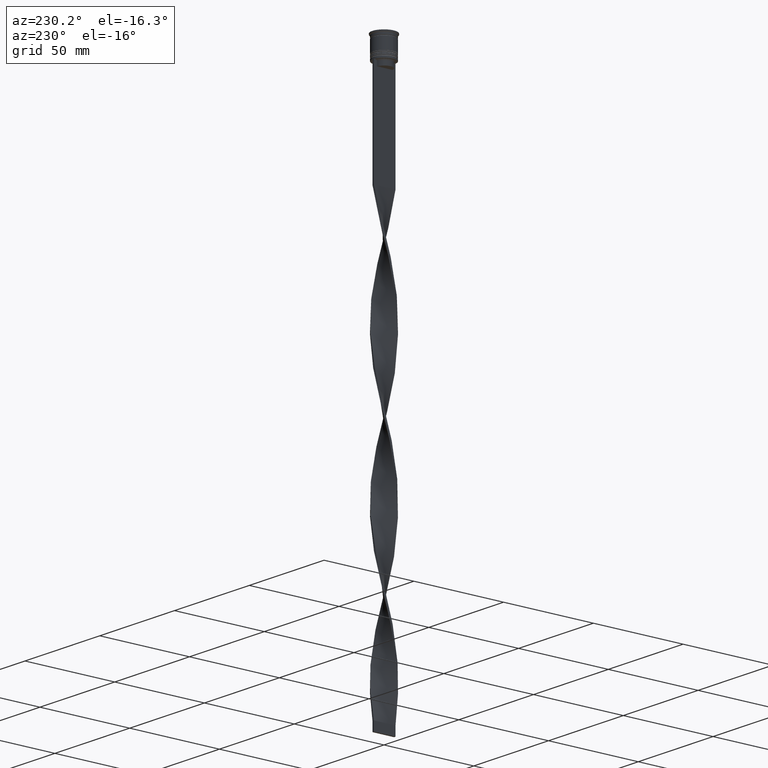
[diagram: clean part render]
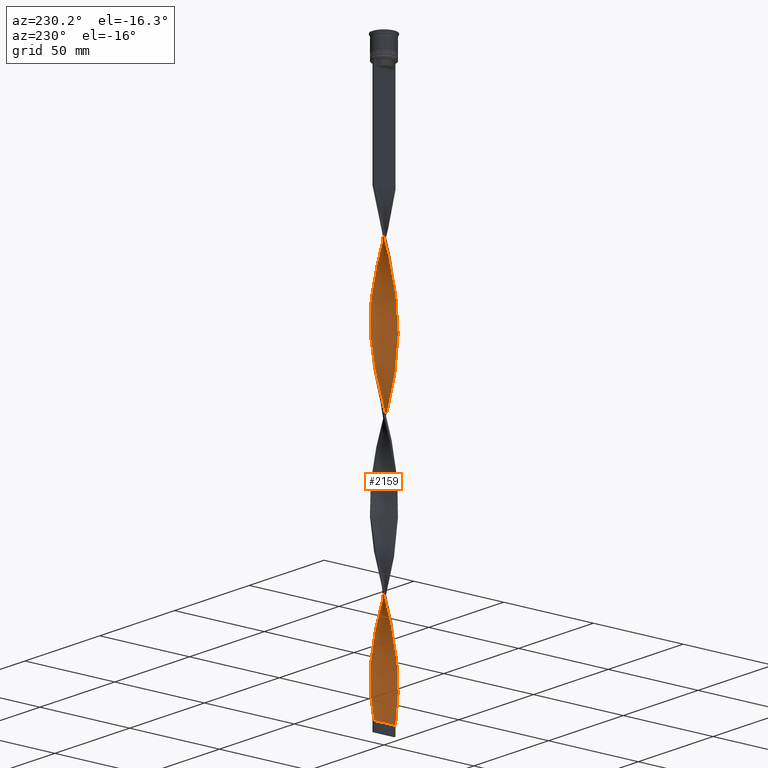
[diagram: same view with one face highlighted and labeled with its STEP entity id]
A machine part, auxiliary view. The second image highlights one B-rep face of the part: STEP entity #2159.
In plain terms, the highlighted face is a freeform B-spline surface patch.
Its self-contained STEP definition (entity closure, byte-faithful):
#12 = CARTESIAN_POINT ( 'NONE',  ( 0.02778975905228941307, 6.039350853412311260, -70.49166666666670267 ) ) ;
#20 = CARTESIAN_POINT ( 'NONE',  ( 4.560209340103447140, 3.931220010942311216, -124.2666666666666799 ) ) ;
#48 = CARTESIAN_POINT ( 'NONE',  ( 0.9722102409477109131, -5.960649146587691405, -229.8250000000000455 ) ) ;
#58 = CARTESIAN_POINT ( 'NONE',  ( -4.560209340103448916, 3.931220010942312992, -92.40000000000000568 ) ) ;
#65 = CARTESIAN_POINT ( 'NONE',  ( -5.393717298852746644, 2.717047055421897728, -174.0583333333333371 ) ) ;
#67 = CARTESIAN_POINT ( 'NONE',  ( -2.766568768664327216, -5.368484725653164702, -297.5416666666666856 ) ) ;
#69 = CARTESIAN_POINT ( 'NONE',  ( -1.892691680130197174, 5.735176475513731553, -154.1416666666666799 ) ) ;
#70 = CARTESIAN_POINT ( 'NONE',  ( 5.551830600583447684, 2.329630224397260641, -275.6333333333333258 ) ) ;
#77 = CARTESIAN_POINT ( 'NONE',  ( 6.004347276090943097, 0.4447626199438150518, -191.9833333333333485 ) ) ;
#83 = CARTESIAN_POINT ( 'NONE',  ( -5.551830600583447684, -2.329630224397259752, -195.9666666666666686 ) ) ;
#86 = CARTESIAN_POINT ( 'NONE',  ( 1.839832417264293918, 5.752351491147216223, -138.2083333333333144 ) ) ;
#87 = CARTESIAN_POINT ( 'NONE',  ( 5.969343698769574047, -0.9173149989399220772, -261.6916666666666629 ) ) ;
#91 = CARTESIAN_POINT ( 'NONE',  ( -5.735176475513733330, 1.892691680130198728, -102.3583333333333485 ) ) ;
#93 = CARTESIAN_POINT ( 'NONE',  ( 0.5000000000000002220, -6.000000000000000000, -68.50000000000000000 ) ) ;
#98 = CARTESIAN_POINT ( 'NONE',  ( -5.119043895260434240, 3.169446260531465498, -96.38333333333335418 ) ) ;
#108 = CARTESIAN_POINT ( 'NONE',  ( 5.735176475513731553, 1.892691680130197396, -273.6416666666666515 ) ) ;
#119 = CARTESIAN_POINT ( 'NONE',  ( 2.717047055421899060, -5.393717298852746644, -162.1083333333333769 ) ) ;
#136 = CARTESIAN_POINT ( 'NONE',  ( 0.9173149989399214110, -5.969343698769575823, -154.1416666666666799 ) ) ;
#142 = CARTESIAN_POINT ( 'NONE',  ( -5.735176475513732441, -1.892691680130194065, -193.9750000000000227 ) ) ;
#146 = CARTESIAN_POINT ( 'NONE',  ( -4.902271885939099683, -3.527358977712830246, -126.2583333333333400 ) ) ;
#153 = CARTESIAN_POINT ( 'NONE',  ( 0.02778975905228941307, 6.039350853412311260, -229.8250000000000455 ) ) ;
#165 = CARTESIAN_POINT ( 'NONE',  ( -1.892691680130197174, 5.735176475513731553, -154.1416666666666799 ) ) ;
#175 = CARTESIAN_POINT ( 'NONE',  ( 5.551830600583447684, 2.329630224397260641, -116.3000000000000114 ) ) ;
#180 = CARTESIAN_POINT ( 'NONE',  ( 4.250815615339192277, 4.290116269486020428, -285.5916666666666970 ) ) ;
#183 = CARTESIAN_POINT ( 'NONE',  ( 1.892691680130197840, -5.735176475513731553, -74.47500000000002274 ) ) ;
#196 = CARTESIAN_POINT ( 'NONE',  ( -3.527358977712831134, 4.902271885939099683, -245.7583333333333826 ) ) ;
#203 = CARTESIAN_POINT ( 'NONE',  ( -3.169446260531465498, -5.119043895260433352, -295.5499999999999545 ) ) ;
#206 = CARTESIAN_POINT ( 'NONE',  ( 5.573034394999979213, -2.278439736343095934, -96.38333333333335418 ) ) ;
#213 = CARTESIAN_POINT ( 'NONE',  ( 6.000000000000000888, -0.5000000000000013323, -188.0000000000000000 ) ) ;
#219 = CARTESIAN_POINT ( 'NONE',  ( 4.869603064867703779, 3.572323752398604224, -281.6083333333334053 ) ) ;
#221 = CARTESIAN_POINT ( 'NONE',  ( 5.573034394999979213, -2.278439736343095934, -96.38333333333335418 ) ) ;
#234 = CARTESIAN_POINT ( 'NONE',  ( 2.766568768664329880, 5.368484725653162926, -217.8750000000000284 ) ) ;
#243 = CARTESIAN_POINT ( 'NONE',  ( -2.278439736343096378, 5.573034394999981878, -239.7833333333333599 ) ) ;
#257 = CARTESIAN_POINT ( 'NONE',  ( 0.9722102409477152429, 5.960649146587692293, -225.8416666666666970 ) ) ;
#264 = CARTESIAN_POINT ( 'NONE',  ( 4.596194077712558723, -3.889087296526011261, -247.7500000000000284 ) ) ;
#265 = CARTESIAN_POINT ( 'NONE',  ( -5.969343698769574047, 0.9173149989399200788, -182.0250000000000341 ) ) ;
#276 = CARTESIAN_POINT ( 'NONE',  ( 2.329630224397263305, 5.551830600583448572, -219.8666666666666742 ) ) ;
#285 = CARTESIAN_POINT ( 'NONE',  ( -3.122203016567365541, 5.147994592395922275, -84.43333333333333712 ) ) ;
#294 = ORIENTED_EDGE ( 'NONE', *, *, #2019, .F. ) ;
#313 = CARTESIAN_POINT ( 'NONE',  ( -6.039350853412312148, 0.02778975905228984328, -269.6583333333334167 ) ) ;
#321 = VERTEX_POINT ( 'NONE', #3954 ) ;
#331 = CARTESIAN_POINT ( 'NONE',  ( -4.290116269486023093, -4.250815615339194053, -289.5750000000000455 ) ) ;
#333 = CARTESIAN_POINT ( 'NONE',  ( -5.551830600583447684, -2.329630224397259752, -195.9666666666666686 ) ) ;
#352 = CARTESIAN_POINT ( 'NONE',  ( -0.9173149989399203008, -5.969343698769574047, -221.8583333333333769 ) ) ;
#361 = CARTESIAN_POINT ( 'NONE',  ( -5.573034394999981878, -2.278439736343096378, -120.2833333333333456 ) ) ;
#374 = CARTESIAN_POINT ( 'NONE',  ( -6.039350853412309483, -0.02778975905228582913, -186.0083333333333258 ) ) ;
#375 = CARTESIAN_POINT ( 'NONE',  ( -4.596194077712559611, -3.889087296526011706, -287.5833333333333712 ) ) ;
#378 = CARTESIAN_POINT ( 'NONE',  ( -5.393717298852745756, 2.717047055421897728, -174.0583333333333371 ) ) ;
#387 = CARTESIAN_POINT ( 'NONE',  ( 5.393717298852747533, 2.717047055421897284, -201.9416666666667197 ) ) ;
#399 = CARTESIAN_POINT ( 'NONE',  ( 1.378573708102107886, 5.860847594958394247, -140.1999999999999886 ) ) ;
#408 = CARTESIAN_POINT ( 'NONE',  ( -0.4999999999999994449, 5.999999999999999112, -307.5000000000000000 ) ) ;
#409 = CARTESIAN_POINT ( 'NONE',  ( -2.717047055421898172, -5.393717298852745756, -213.8916666666666799 ) ) ;
#410 = CARTESIAN_POINT ( 'NONE',  ( 3.889087296526011706, -4.596194077712560500, -168.0833333333333712 ) ) ;
#418 = CARTESIAN_POINT ( 'NONE',  ( 4.290116269486021316, -4.250815615339192277, -245.7583333333333826 ) ) ;
#430 = CARTESIAN_POINT ( 'NONE',  ( -5.860847594958396911, -1.378573708102107220, -116.3000000000000114 ) ) ;
#441 = CARTESIAN_POINT ( 'NONE',  ( 3.169446260531464610, -5.119043895260433352, -239.7833333333333599 ) ) ;
#445 = CARTESIAN_POINT ( 'NONE',  ( -3.527358977712831134, 4.902271885939099683, -86.42499999999999716 ) ) ;
#453 = CARTESIAN_POINT ( 'NONE',  ( 5.847912811050711035, -1.432450960538955265, -184.0166666666666515 ) ) ;
#461 = CARTESIAN_POINT ( 'NONE',  ( 2.717047055421899948, 5.393717298852744868, -134.2250000000000227 ) ) ;
#472 = CARTESIAN_POINT ( 'NONE',  ( 2.766568768664329880, 5.368484725653162926, -217.8750000000000568 ) ) ;
#480 = CARTESIAN_POINT ( 'NONE',  ( -5.960649146587690517, -0.9722102409477125784, -189.9916666666667027 ) ) ;
#482 = CARTESIAN_POINT ( 'NONE',  ( 0.4447626199438167727, 6.004347276090940433, -144.1833333333333371 ) ) ;
#485 = CARTESIAN_POINT ( 'NONE',  ( -3.931220010942313881, -4.560209340103448028, -132.2333333333333485 ) ) ;
#490 = CARTESIAN_POINT ( 'NONE',  ( -3.889087296526011706, 4.596194077712559611, -247.7500000000000284 ) ) ;
#498 = VECTOR ( 'NONE', #719, 1000.000000000000000 ) ;
#500 = CARTESIAN_POINT ( 'NONE',  ( 2.329630224397261085, -5.551830600583446795, -235.8000000000000114 ) ) ;
#504 = CARTESIAN_POINT ( 'NONE',  ( 1.432450960538955709, 5.847912811050711035, -223.8500000000000227 ) ) ;
#512 = CARTESIAN_POINT ( 'NONE',  ( -3.931220010942313881, -4.560209340103448028, -291.5666666666667197 ) ) ;
#514 = CARTESIAN_POINT ( 'NONE',  ( 1.378573708102107886, 5.860847594958394247, -299.5333333333333030 ) ) ;
#524 = CARTESIAN_POINT ( 'NONE',  ( -4.560209340103448916, 3.931220010942312992, -251.7333333333333769 ) ) ;
#533 = CARTESIAN_POINT ( 'NONE',  ( 5.147994592395920499, -3.122203016567364209, -92.40000000000000568 ) ) ;
#543 = CARTESIAN_POINT ( 'NONE',  ( 0.4447626199438153849, -6.004347276090943097, -152.1500000000000057 ) ) ;
#550 = CARTESIAN_POINT ( 'NONE',  ( 2.329630224397263305, 5.551830600583448572, -219.8666666666666742 ) ) ;
#562 = CARTESIAN_POINT ( 'NONE',  ( 5.368484725653162926, -2.766568768664329436, -178.0416666666667140 ) ) ;
#572 = CARTESIAN_POINT ( 'NONE',  ( -0.4999999999999994449, 5.999999999999999112, -148.1666666666666572 ) ) ;
#576 = CARTESIAN_POINT ( 'NONE',  ( 0.5000000000000002220, -5.999999999999999112, -227.8333333333333428 ) ) ;
#586 = CARTESIAN_POINT ( 'NONE',  ( 4.596194077712558723, -3.889087296526011261, -88.41666666666667140 ) ) ;
#587 = CARTESIAN_POINT ( 'NONE',  ( -0.9722102409477118012, -5.960649146587692293, -146.1750000000000114 ) ) ;
#597 = CARTESIAN_POINT ( 'NONE',  ( -0.5000000000000009992, -6.000000000000000888, -307.5000000000000000 ) ) ;
#645 = CARTESIAN_POINT ( 'NONE',  ( -3.169446260531463722, 5.119043895260433352, -160.1166666666666742 ) ) ;
#664 = CARTESIAN_POINT ( 'NONE',  ( -1.839832417264297026, -5.752351491147214446, -217.8750000000000568 ) ) ;
#672 = CARTESIAN_POINT ( 'NONE',  ( 6.000000000000000888, -0.5000000000000013323, -188.0000000000000000 ) ) ;
#679 = CARTESIAN_POINT ( 'NONE',  ( -5.969343698769574935, 0.9173149989399200788, -182.0250000000000341 ) ) ;
#680 = CARTESIAN_POINT ( 'NONE',  ( -1.892691680130198728, -5.735176475513733330, -301.5250000000000341 ) ) ;
#682 = CARTESIAN_POINT ( 'NONE',  ( -4.290116269486020428, 4.250815615339193165, -166.0916666666666686 ) ) ;
#693 = CARTESIAN_POINT ( 'NONE',  ( -4.250815615339191389, -4.290116269486022205, -205.9250000000000114 ) ) ;
#694 = CARTESIAN_POINT ( 'NONE',  ( 5.860847594958396911, 1.378573708102106554, -195.9666666666666686 ) ) ;
#712 = CARTESIAN_POINT ( 'NONE',  ( -0.02778975905228881632, 6.039350853412309483, -146.1750000000000114 ) ) ;
#713 = CARTESIAN_POINT ( 'NONE',  ( -5.999999999999999112, -0.4999999999999991673, -188.0000000000000000 ) ) ;
#719 = DIRECTION ( 'NONE',  ( 0.000000000000000000, 1.000000000000000000, 0.000000000000000000 ) ) ;
#722 = CARTESIAN_POINT ( 'NONE',  ( 5.752351491147216223, -1.839832417264293918, -98.37500000000001421 ) ) ;
#723 = CARTESIAN_POINT ( 'NONE',  ( 5.147994592395923164, 3.122203016567364209, -203.9333333333333655 ) ) ;
#725 = CARTESIAN_POINT ( 'NONE',  ( 5.847912811050710147, 1.432450960538953932, -112.3166666666666771 ) ) ;
#741 = CARTESIAN_POINT ( 'NONE',  ( -5.969343698769575823, -0.9173149989399215221, -114.3083333333333655 ) ) ;
#749 = CARTESIAN_POINT ( 'NONE',  ( 4.560209340103447140, 3.931220010942311216, -283.6000000000000227 ) ) ;
#752 = CARTESIAN_POINT ( 'NONE',  ( -0.9173149989399220772, 5.969343698769576712, -74.47500000000000853 ) ) ;
#759 = CARTESIAN_POINT ( 'NONE',  ( -6.039350853412311260, 0.02778975905228984675, -110.3250000000000171 ) ) ;
#767 = CARTESIAN_POINT ( 'NONE',  ( -5.999999999999999112, -0.4999999999999991673, -188.0000000000000000 ) ) ;
#769 = CARTESIAN_POINT ( 'NONE',  ( 2.329630224397261085, -5.551830600583446795, -235.8000000000000114 ) ) ;
#772 = CARTESIAN_POINT ( 'NONE',  ( 0.9173149989399225213, 5.969343698769574935, -142.1916666666666913 ) ) ;
#773 = CARTESIAN_POINT ( 'NONE',  ( 0.4447626199438167727, 6.004347276090940433, -303.5166666666666515 ) ) ;
#776 = EDGE_CURVE ( 'NONE', #2861, #321, #3605, .T. ) ;
#778 = CARTESIAN_POINT ( 'NONE',  ( -5.860847594958396911, -1.378573708102107220, -116.3000000000000114 ) ) ;
#786 = CARTESIAN_POINT ( 'NONE',  ( -6.004347276090943097, -0.4447626199438159400, -271.6499999999999773 ) ) ;
#792 = CARTESIAN_POINT ( 'NONE',  ( 1.432450960538954154, -5.847912811050710147, -231.8166666666666629 ) ) ;
#794 = CARTESIAN_POINT ( 'NONE',  ( -3.169446260531463722, 5.119043895260433352, -160.1166666666666742 ) ) ;
#804 = EDGE_CURVE ( 'NONE', #2861, #3189, #1567, .T. ) ;
#805 = CARTESIAN_POINT ( 'NONE',  ( -3.122203016567365541, 5.147994592395922275, -243.7666666666666799 ) ) ;
#809 = CARTESIAN_POINT ( 'NONE',  ( -5.119043895260434240, -3.169446260531463722, -199.9500000000000171 ) ) ;
#821 = CARTESIAN_POINT ( 'NONE',  ( 5.368484725653162926, 2.766568768664325439, -118.2916666666666998 ) ) ;
#827 = CARTESIAN_POINT ( 'NONE',  ( 2.766568768664325884, -5.368484725653162926, -78.45833333333332860 ) ) ;
#844 = CARTESIAN_POINT ( 'NONE',  ( 4.290116269486023981, 4.250815615339191389, -209.9083333333333599 ) ) ;
#854 = CARTESIAN_POINT ( 'NONE',  ( 4.290116269486021316, -4.250815615339192277, -86.42499999999999716 ) ) ;
#866 = CARTESIAN_POINT ( 'NONE',  ( 5.860847594958396911, 1.378573708102106554, -195.9666666666666686 ) ) ;
#874 = CARTESIAN_POINT ( 'NONE',  ( -2.329630224397262417, -5.551830600583448572, -299.5333333333333030 ) ) ;
#885 = CARTESIAN_POINT ( 'NONE',  ( 5.393717298852744868, -2.717047055421899948, -94.39166666666669414 ) ) ;
#886 = CARTESIAN_POINT ( 'NONE',  ( -1.839832417264293918, 5.752351491147217999, -237.7916666666667140 ) ) ;
#891 = CARTESIAN_POINT ( 'NONE',  ( -0.5000000000000009992, -6.000000000000000888, -307.5000000000000000 ) ) ;
#892 = CARTESIAN_POINT ( 'NONE',  ( -2.766568768664324995, 5.368484725653163814, -158.1250000000000000 ) ) ;
#903 = CARTESIAN_POINT ( 'NONE',  ( 3.122203016567364653, -5.147994592395922275, -164.1000000000000227 ) ) ;
#915 = CARTESIAN_POINT ( 'NONE',  ( -1.378573708102108997, -5.860847594958394247, -219.8666666666666742 ) ) ;
#929 = CARTESIAN_POINT ( 'NONE',  ( 6.039350853412312148, -0.02778975905228783447, -189.9916666666667027 ) ) ;
#989 = CARTESIAN_POINT ( 'NONE',  ( -3.122203016567365541, -5.147994592395919611, -211.9000000000000057 ) ) ;
#1008 = CARTESIAN_POINT ( 'NONE',  ( -3.572323752398603336, 4.869603064867703779, -162.1083333333333769 ) ) ;
#1009 = CARTESIAN_POINT ( 'NONE',  ( 5.960649146587690517, 0.9722102409477104690, -269.6583333333334167 ) ) ;
#1019 = CARTESIAN_POINT ( 'NONE',  ( 4.869603064867705555, -3.572323752398603780, -174.0583333333333371 ) ) ;
#1026 = CARTESIAN_POINT ( 'NONE',  ( -1.432450960538955043, -5.847912811050711035, -303.5166666666666515 ) ) ;
#1028 = CARTESIAN_POINT ( 'NONE',  ( -6.004347276090940433, 0.4447626199438171057, -184.0166666666666515 ) ) ;
#1040 = CARTESIAN_POINT ( 'NONE',  ( -5.368484725653164702, 2.766568768664326772, -98.37500000000002842 ) ) ;
#1054 = CARTESIAN_POINT ( 'NONE',  ( 1.378573708102107886, 5.860847594958394247, -299.5333333333333030 ) ) ;
#1056 = B_SPLINE_CURVE_WITH_KNOTS ( 'NONE', 3,
 ( #597, #2571, #4109, #3135 ),
 .UNSPECIFIED., .F., .F.,
 ( 4, 4 ),
 ( 0.000000000000000000, 1.000000000000000000 ),
 .UNSPECIFIED. ) ;
#1064 = CARTESIAN_POINT ( 'NONE',  ( 0.02778975905228550647, -6.039350853412309483, -225.8416666666666970 ) ) ;
#1065 = CARTESIAN_POINT ( 'NONE',  ( 3.572323752398604224, 4.869603064867705555, -213.8916666666666799 ) ) ;
#1074 = CARTESIAN_POINT ( 'NONE',  ( 5.847912811050710147, 1.432450960538953932, -271.6499999999999773 ) ) ;
#1077 = CARTESIAN_POINT ( 'NONE',  ( 2.329630224397261085, -5.551830600583446795, -76.46666666666666856 ) ) ;
#1083 = CARTESIAN_POINT ( 'NONE',  ( -5.551830600583448572, 2.329630224397261973, -100.3666666666666742 ) ) ;
#1093 = CARTESIAN_POINT ( 'NONE',  ( 3.122203016567365097, 5.147994592395919611, -291.5666666666667197 ) ) ;
#1097 = CARTESIAN_POINT ( 'NONE',  ( -6.039350853412312148, 0.02778975905228984328, -110.3250000000000171 ) ) ;
#1103 = CARTESIAN_POINT ( 'NONE',  ( -0.02778975905229016594, -6.039350853412311260, -150.1583333333333599 ) ) ;
#1124 = CARTESIAN_POINT ( 'NONE',  ( -0.9722102409477118012, -5.960649146587693181, -305.5083333333334963 ) ) ;
#1131 = CARTESIAN_POINT ( 'NONE',  ( 3.527358977712831134, 4.902271885939097906, -289.5750000000000455 ) ) ;
#1140 = CARTESIAN_POINT ( 'NONE',  ( -5.860847594958396911, -1.378573708102107220, -275.6333333333333258 ) ) ;
#1151 = CARTESIAN_POINT ( 'NONE',  ( 5.969343698769576712, 0.9173149989399183024, -193.9750000000000227 ) ) ;
#1158 = CARTESIAN_POINT ( 'NONE',  ( 3.169446260531464610, -5.119043895260433352, -80.45000000000000284 ) ) ;
#1170 = CARTESIAN_POINT ( 'NONE',  ( -4.902271885939096130, 3.527358977712832910, -170.0750000000000455 ) ) ;
#1176 = CARTESIAN_POINT ( 'NONE',  ( -5.551830600583448572, 2.329630224397261973, -259.7000000000000455 ) ) ;
#1179 = CARTESIAN_POINT ( 'NONE',  ( 4.869603064867703779, 3.572323752398604224, -122.2750000000000199 ) ) ;
#1183 = CARTESIAN_POINT ( 'NONE',  ( 3.122203016567365097, 5.147994592395919611, -291.5666666666667197 ) ) ;
#1186 = CARTESIAN_POINT ( 'NONE',  ( -3.572323752398605556, -4.869603064867704667, -293.5583333333334508 ) ) ;
#1198 = CARTESIAN_POINT ( 'NONE',  ( 1.892691680130196952, 5.735176475513733330, -221.8583333333333769 ) ) ;
#1204 = CARTESIAN_POINT ( 'NONE',  ( 5.551830600583447684, 2.329630224397260641, -116.3000000000000114 ) ) ;
#1216 = CARTESIAN_POINT ( 'NONE',  ( 5.847912811050711035, -1.432450960538955265, -184.0166666666666515 ) ) ;
#1223 = CARTESIAN_POINT ( 'NONE',  ( -2.717047055421898172, -5.393717298852744868, -213.8916666666666799 ) ) ;
#1233 = CARTESIAN_POINT ( 'NONE',  ( 3.527358977712829802, -4.902271885939099683, -166.0916666666666970 ) ) ;
#1293 = VERTEX_POINT ( 'NONE', #891 ) ;
#1294 = CARTESIAN_POINT ( 'NONE',  ( -3.889087296526011706, -4.596194077712557835, -207.9166666666666572 ) ) ;
#1317 = CARTESIAN_POINT ( 'NONE',  ( 4.250815615339192277, 4.290116269486020428, -126.2583333333333258 ) ) ;
#1326 = CARTESIAN_POINT ( 'NONE',  ( 1.839832417264293252, -5.752351491147218887, -158.1250000000000000 ) ) ;
#1333 = CARTESIAN_POINT ( 'NONE',  ( -5.969343698769576712, -0.9173149989399216331, -273.6416666666666515 ) ) ;
#1335 = CARTESIAN_POINT ( 'NONE',  ( 1.839832417264293918, 5.752351491147216223, -138.2083333333333144 ) ) ;
#1346 = CARTESIAN_POINT ( 'NONE',  ( -1.432450960538955043, -5.847912811050711035, -144.1833333333333371 ) ) ;
#1355 = CARTESIAN_POINT ( 'NONE',  ( -3.931220010942311216, 4.560209340103447140, -164.1000000000000227 ) ) ;
#1356 = CARTESIAN_POINT ( 'NONE',  ( 6.004347276090941321, -0.4447626199438162731, -263.6833333333333940 ) ) ;
#1368 = CARTESIAN_POINT ( 'NONE',  ( -3.931220010942313881, -4.560209340103448028, -132.2333333333333485 ) ) ;
#1378 = CARTESIAN_POINT ( 'NONE',  ( -5.847912811050710147, -1.432450960538953044, -191.9833333333333485 ) ) ;
#1382 = CARTESIAN_POINT ( 'NONE',  ( 2.278439736343096822, 5.573034394999980101, -136.2166666666666686 ) ) ;
#1383 = CARTESIAN_POINT ( 'NONE',  ( 1.432450960538954154, -5.847912811050710147, -231.8166666666666629 ) ) ;
#1392 = CARTESIAN_POINT ( 'NONE',  ( -3.122203016567365541, -5.147994592395919611, -211.9000000000000057 ) ) ;
#1393 = CARTESIAN_POINT ( 'NONE',  ( 3.122203016567364653, -5.147994592395922275, -164.1000000000000227 ) ) ;
#1406 = CARTESIAN_POINT ( 'NONE',  ( -5.551830600583448572, 2.329630224397261973, -100.3666666666666742 ) ) ;
#1412 = CARTESIAN_POINT ( 'NONE',  ( -4.596194077712559611, -3.889087296526011706, -128.2500000000000000 ) ) ;
#1417 = CARTESIAN_POINT ( 'NONE',  ( 1.432450960538954154, -5.847912811050710147, -72.48333333333334849 ) ) ;
#1424 = CARTESIAN_POINT ( 'NONE',  ( 0.5000000000000002220, 6.000000000000000888, -68.50000000000000000 ) ) ;
#1432 = CARTESIAN_POINT ( 'NONE',  ( -5.368484725653164702, 2.766568768664326772, -257.7083333333333144 ) ) ;
#1457 = CARTESIAN_POINT ( 'NONE',  ( -5.393717298852746644, -2.717047055421899948, -281.6083333333334622 ) ) ;
#1468 = CARTESIAN_POINT ( 'NONE',  ( 1.378573708102106776, -5.860847594958396911, -156.1333333333333542 ) ) ;
#1477 = CARTESIAN_POINT ( 'NONE',  ( -4.902271885939099683, -3.527358977712830246, -285.5916666666666401 ) ) ;
#1487 = CARTESIAN_POINT ( 'NONE',  ( -2.278439736343096378, 5.573034394999981878, -239.7833333333333599 ) ) ;
#1496 = CARTESIAN_POINT ( 'NONE',  ( 5.752351491147216223, -1.839832417264293918, -98.37500000000002842 ) ) ;
#1509 = CARTESIAN_POINT ( 'NONE',  ( -0.5000000000000009992, -6.000000000000000888, -148.1666666666666572 ) ) ;
#1518 = CARTESIAN_POINT ( 'NONE',  ( -4.250815615339194053, 4.290116269486022205, -249.7416666666666742 ) ) ;
#1531 = CARTESIAN_POINT ( 'NONE',  ( 5.147994592395920499, -3.122203016567364209, -92.40000000000000568 ) ) ;
#1532 = CARTESIAN_POINT ( 'NONE',  ( 5.573034394999981878, 2.278439736343095934, -199.9500000000000171 ) ) ;
#1540 = CARTESIAN_POINT ( 'NONE',  ( 3.527358977712831134, 4.902271885939097906, -130.2416666666667027 ) ) ;
#1552 = CARTESIAN_POINT ( 'NONE',  ( 0.02778975905228940960, 6.039350853412312148, -229.8250000000000171 ) ) ;
#1560 = CARTESIAN_POINT ( 'NONE',  ( -3.527358977712831134, 4.902271885939099683, -86.42499999999999716 ) ) ;
#1567 =( BOUNDED_CURVE ( )  B_SPLINE_CURVE ( 2, ( #3209, #3344, #1417, #2686, #1077, #2970, #1698, #2337, #2574, #3435, #586, #3392, #1531, #885, #206, #722, #2006, #3990, #2490, #3523, #3215, #2618, #725, #1712, #175, #821, #1641, #1179, #3712, #2463, #3734, #3413, #3687, #461, #1382, #86, #3288, #772, #482, #712, #3312, #3895, #1675, #165, #1756, #3952, #794, #2076, #1355, #1996, #2629, #1170, #3527, #65, #1590, #4096, #3789, #679, #3223, #374, #767, #480, #1378, #142, #83, #2372, #809, #2086, #3587, #693, #2935, #1638, #1392, #409, #2615, #2303, #3569, #2024, #2645, #1064, #576, #2852, #792, #3972, #769, #2731, #2672, #2393, #2434, #3705, #264, #2805, #1993, #2316, #3578, #3165, #2862, #1968, #2233, #3836, #3229, #1009, #1657, #3494, #70, #1924, #1810, #219, #2741, #180, #3093, #3940, #1183, #3715, #3398, #3670, #514, #3279, #2958, #2807, #408 ),
 .UNSPECIFIED., .F., .T. ) 
 B_SPLINE_CURVE_WITH_KNOTS ( ( 3, 2, 2, 2, 2, 2, 2, 2, 2, 2, 2, 2, 2, 2, 2, 2, 2, 2, 2, 2, 2, 2, 2, 2, 2, 2, 2, 2, 2, 2, 2, 2, 2, 2, 2, 2, 2, 2, 2, 2, 2, 2, 2, 2, 2, 2, 2, 2, 2, 2, 2, 2, 2, 2, 2, 2, 2, 2, 2, 2, 3 ),
 ( 0.000000000000000000, 0.01250000000000000243, 0.02500000000000000486, 0.03749999999999999861, 0.05000000000000000971, 0.06250000000000000000, 0.07499999999999999722, 0.08749999999999998057, 0.1000000000000000194, 0.1125000000000000028, 0.1250000000000000000, 0.1375000000000000111, 0.1499999999999999944, 0.1625000000000000056, 0.1749999999999999611, 0.1875000000000000000, 0.2000000000000000389, 0.2124999999999999944, 0.2250000000000000056, 0.2374999999999999611, 0.2500000000000000000, 0.2625000000000000111, 0.2750000000000000222, 0.2874999999999999778, 0.2999999999999999889, 0.3125000000000000000, 0.3250000000000000111, 0.3375000000000000777, 0.3499999999999999223, 0.3624999999999999889, 0.3750000000000000000, 0.3875000000000000111, 0.4000000000000000777, 0.4124999999999999223, 0.4249999999999999889, 0.4375000000000000000, 0.4500000000000000111, 0.4625000000000000777, 0.4749999999999999223, 0.4874999999999999889, 0.5000000000000000000, 0.5124999999999999556, 0.5250000000000000222, 0.5374999999999999778, 0.5500000000000000444, 0.5625000000000000000, 0.5749999999999999556, 0.5875000000000000222, 0.5999999999999999778, 0.6125000000000000444, 0.6250000000000000000, 0.6374999999999999556, 0.6500000000000000222, 0.6624999999999999778, 0.6750000000000001554, 0.6875000000000000000, 0.6999999999999998446, 0.7125000000000000222, 0.7249999999999999778, 0.7375000000000001554, 0.7500000000000000000 ),
 .UNSPECIFIED. ) 
 CURVE ( )  GEOMETRIC_REPRESENTATION_ITEM ( )  RATIONAL_B_SPLINE_CURVE ( ( 1.000000000000000000, 0.9969173337331279638, 1.000000000000000000, 0.9969173337331279638, 1.000000000000000000, 0.9969173337331279638, 1.000000000000000000, 0.9969173337331279638, 1.000000000000000000, 0.9969173337331279638, 1.000000000000000000, 0.9969173337331279638, 1.000000000000000000, 0.9969173337331279638, 1.000000000000000000, 0.9969173337331279638, 1.000000000000000000, 0.9969173337331279638, 1.000000000000000000, 0.9969173337331279638, 1.000000000000000000, 0.9969173337331279638, 1.000000000000000000, 0.9969173337331279638, 1.000000000000000000, 0.9969173337331279638, 1.000000000000000000, 0.9969173337331279638, 1.000000000000000000, 0.9969173337331279638, 1.000000000000000000, 0.9969173337331279638, 1.000000000000000000, 0.9969173337331279638, 1.000000000000000000, 0.9969173337331279638, 1.000000000000000000, 0.9969173337331279638, 1.000000000000000000, 0.9969173337331279638, 1.000000000000000000, 0.9969173337331279638, 1.000000000000000000, 0.9969173337331279638, 1.000000000000000000, 0.9969173337331279638, 1.000000000000000000, 0.9969173337331279638, 1.000000000000000000, 0.9969173337331279638, 1.000000000000000000, 0.9969173337331279638, 1.000000000000000000, 0.9969173337331279638, 1.000000000000000000, 0.9969173337331279638, 1.000000000000000000, 0.9969173337331279638, 1.000000000000000000, 0.9969173337331279638, 1.000000000000000000, 0.9969173337331279638, 1.000000000000000000, 0.9969173337331279638, 1.000000000000000000, 0.9969173337331279638, 1.000000000000000000, 0.9969173337331279638, 1.000000000000000000, 0.9969173337331279638, 1.000000000000000000, 0.9969173337331279638, 1.000000000000000000, 0.9969173337331279638, 1.000000000000000000, 0.9969173337331279638, 1.000000000000000000, 0.9969173337331279638, 1.000000000000000000, 0.9969173337331279638, 1.000000000000000000, 0.9969173337331279638, 1.000000000000000000, 0.9969173337331279638, 1.000000000000000000, 0.9969173337331279638, 1.000000000000000000, 0.9969173337331279638, 1.000000000000000000, 0.9969173337331279638, 1.000000000000000000, 0.9969173337331279638, 1.000000000000000000, 0.9969173337331279638, 1.000000000000000000, 0.9969173337331279638, 1.000000000000000000, 0.9969173337331279638, 1.000000000000000000, 0.9969173337331279638, 1.000000000000000000, 0.9969173337331279638, 1.000000000000000000, 0.9969173337331279638, 1.000000000000000000, 0.9969173337331279638, 1.000000000000000000, 0.9969173337331279638, 1.000000000000000000, 0.9969173337331279638, 1.000000000000000000, 0.9969173337331279638, 1.000000000000000000, 0.9969173337331279638, 1.000000000000000000, 0.9969173337331279638, 1.000000000000000000, 0.9969173337331279638, 1.000000000000000000, 0.9969173337331279638, 1.000000000000000000 ) ) 
 REPRESENTATION_ITEM ( '' )  );
#1590 = CARTESIAN_POINT ( 'NONE',  ( -5.573034394999980101, 2.278439736343096822, -176.0500000000000114 ) ) ;
#1606 = CARTESIAN_POINT ( 'NONE',  ( -5.847912811050711923, 1.432450960538954821, -263.6833333333333940 ) ) ;
#1608 = CARTESIAN_POINT ( 'NONE',  ( -4.250815615339191389, -4.290116269486022205, -205.9250000000000114 ) ) ;
#1627 = CARTESIAN_POINT ( 'NONE',  ( 0.5000000000000002220, -5.999999999999999112, -227.8333333333333428 ) ) ;
#1638 = CARTESIAN_POINT ( 'NONE',  ( -3.527358977712832910, -4.902271885939095242, -209.9083333333333599 ) ) ;
#1639 = CARTESIAN_POINT ( 'NONE',  ( -6.000000000000000888, 0.5000000000000005551, -108.3333333333333428 ) ) ;
#1641 = CARTESIAN_POINT ( 'NONE',  ( 5.119043895260433352, 3.169446260531464610, -120.2833333333333456 ) ) ;
#1643 = EDGE_CURVE ( 'NONE', #321, #1293, #2005, .T. ) ;
#1654 = CARTESIAN_POINT ( 'NONE',  ( -0.5000000000000009992, -6.000000000000000888, -307.5000000000000000 ) ) ;
#1656 = CARTESIAN_POINT ( 'NONE',  ( -5.847912811050710147, -1.432450960538953044, -191.9833333333333485 ) ) ;
#1657 = CARTESIAN_POINT ( 'NONE',  ( 5.847912811050710147, 1.432450960538953932, -271.6499999999999773 ) ) ;
#1665 = CARTESIAN_POINT ( 'NONE',  ( 4.902271885939098794, 3.527358977712832910, -205.9250000000000114 ) ) ;
#1675 = CARTESIAN_POINT ( 'NONE',  ( -1.432450960538953488, 5.847912811050710147, -152.1500000000000057 ) ) ;
#1676 = CARTESIAN_POINT ( 'NONE',  ( 0.9173149989399225213, 5.969343698769574047, -142.1916666666666913 ) ) ;
#1681 = CARTESIAN_POINT ( 'NONE',  ( -2.278439736343096378, 5.573034394999981878, -80.45000000000000284 ) ) ;
#1685 = CARTESIAN_POINT ( 'NONE',  ( -3.169446260531465498, -5.119043895260433352, -136.2166666666666686 ) ) ;
#1692 = CARTESIAN_POINT ( 'NONE',  ( 2.717047055421899948, 5.393717298852743980, -293.5583333333334508 ) ) ;
#1698 = CARTESIAN_POINT ( 'NONE',  ( 3.169446260531464610, -5.119043895260433352, -80.45000000000000284 ) ) ;
#1709 = CARTESIAN_POINT ( 'NONE',  ( -3.572323752398605556, -4.869603064867704667, -134.2249999999999943 ) ) ;
#1712 = CARTESIAN_POINT ( 'NONE',  ( 5.735176475513731553, 1.892691680130197396, -114.3083333333333655 ) ) ;
#1722 = CARTESIAN_POINT ( 'NONE',  ( 5.999999999999999112, 0.4999999999999998890, -267.6666666666667425 ) ) ;
#1725 = CARTESIAN_POINT ( 'NONE',  ( -3.889087296526011706, 4.596194077712559611, -88.41666666666667140 ) ) ;
#1731 = CARTESIAN_POINT ( 'NONE',  ( 6.039350853412311260, -0.02778975905228783447, -189.9916666666667027 ) ) ;
#1746 = CARTESIAN_POINT ( 'NONE',  ( -5.147994592395922275, -3.122203016567364653, -283.6000000000000227 ) ) ;
#1756 = CARTESIAN_POINT ( 'NONE',  ( -2.329630224397260196, 5.551830600583447684, -156.1333333333333542 ) ) ;
#1766 = CARTESIAN_POINT ( 'NONE',  ( 0.5000000000000002220, -5.999999999999999112, -68.50000000000000000 ) ) ;
#1780 = CARTESIAN_POINT ( 'NONE',  ( 4.596194077712558723, -3.889087296526011261, -247.7500000000000284 ) ) ;
#1784 = CARTESIAN_POINT ( 'NONE',  ( -0.4447626199438162731, 6.004347276090943097, -231.8166666666666629 ) ) ;
#1793 = CARTESIAN_POINT ( 'NONE',  ( -2.717047055421899948, 5.393717298852746644, -241.7750000000000625 ) ) ;
#1805 = CARTESIAN_POINT ( 'NONE',  ( -4.869603064867703779, 3.572323752398605556, -253.7250000000000227 ) ) ;
#1810 = CARTESIAN_POINT ( 'NONE',  ( 5.119043895260433352, 3.169446260531464610, -279.6166666666666742 ) ) ;
#1812 = CARTESIAN_POINT ( 'NONE',  ( -4.290116269486023093, -4.250815615339194053, -289.5750000000000455 ) ) ;
#1822 = CARTESIAN_POINT ( 'NONE',  ( 4.596194077712559611, 3.889087296526010817, -207.9166666666666572 ) ) ;
#1830 = CARTESIAN_POINT ( 'NONE',  ( 1.432450960538955709, 5.847912811050711035, -223.8500000000000227 ) ) ;
#1847 = CARTESIAN_POINT ( 'NONE',  ( 5.960649146587692293, -0.9722102409477147988, -186.0083333333333258 ) ) ;
#1855 = CARTESIAN_POINT ( 'NONE',  ( 3.889087296526011261, 4.596194077712557835, -128.2500000000000000 ) ) ;
#1866 = CARTESIAN_POINT ( 'NONE',  ( 3.572323752398604224, 4.869603064867704667, -213.8916666666666799 ) ) ;
#1873 = CARTESIAN_POINT ( 'NONE',  ( -2.278439736343096378, 5.573034394999981878, -80.45000000000000284 ) ) ;
#1890 = CARTESIAN_POINT ( 'NONE',  ( -2.717047055421899948, 5.393717298852746644, -82.44166666666666288 ) ) ;
#1902 = CARTESIAN_POINT ( 'NONE',  ( -5.752351491147217999, -1.839832417264293918, -277.6250000000000568 ) ) ;
#1923 = CARTESIAN_POINT ( 'NONE',  ( 5.847912811050710147, 1.432450960538953932, -112.3166666666666771 ) ) ;
#1924 = CARTESIAN_POINT ( 'NONE',  ( 5.368484725653162926, 2.766568768664325439, -277.6250000000000568 ) ) ;
#1934 = EDGE_LOOP ( 'NONE', ( #4058, #2755, #294, #2889 ) ) ;
#1943 = CARTESIAN_POINT ( 'NONE',  ( 3.122203016567365097, 5.147994592395919611, -132.2333333333333485 ) ) ;
#1954 = CARTESIAN_POINT ( 'NONE',  ( -1.892691680130198728, -5.735176475513733330, -142.1916666666666913 ) ) ;
#1967 = CARTESIAN_POINT ( 'NONE',  ( 5.999999999999999112, 0.4999999999999998890, -108.3333333333333428 ) ) ;
#1968 = CARTESIAN_POINT ( 'NONE',  ( 5.969343698769574935, -0.9173149989399220772, -261.6916666666666629 ) ) ;
#1982 = CARTESIAN_POINT ( 'NONE',  ( -2.329630224397262417, -5.551830600583448572, -140.1999999999999886 ) ) ;
#1993 = CARTESIAN_POINT ( 'NONE',  ( 5.147994592395920499, -3.122203016567364209, -251.7333333333333769 ) ) ;
#1996 = CARTESIAN_POINT ( 'NONE',  ( -4.290116269486020428, 4.250815615339193165, -166.0916666666666970 ) ) ;
#1997 = CARTESIAN_POINT ( 'NONE',  ( 5.735176475513731553, 1.892691680130197396, -114.3083333333333655 ) ) ;
#2005 =( BOUNDED_CURVE ( )  B_SPLINE_CURVE ( 2, ( #1424, #3603, #3977, #752, #3584, #2097, #1681, #2039, #3294, #445, #1725, #2952, #2989, #2693, #2322, #2397, #1406, #91, #2636, #2676, #3935, #1097, #2356, #3625, #778, #3644, #2063, #3316, #2079, #146, #3957, #3331, #485, #2819, #4056, #2781, #3436, #2460, #3393, #587, #1509, #4072, #543, #2414, #1468, #3709, #2735, #3731, #903, #1233, #2153, #3995, #2500, #3410, #3128, #562, #3774, #2478, #1216, #1847, #213, #929, #2177, #1151, #866, #3111, #1532, #3747, #4037, #2138, #1822, #844, #3086, #1866, #2195, #234, #276, #1198, #504, #257, #4013, #1552, #1784, #3684, #2799, #886, #1487, #2440, #3049, #196, #2120, #3377, #524, #1805, #3068, #2754, #1176, #2269, #1606, #2250, #2860, #313, #3469, #1333, #2881, #1902, #3873, #3163, #2603, #3224, #375, #331, #2520, #3511, #3531, #67, #3790, #680, #1026, #3452, #1654 ),
 .UNSPECIFIED., .F., .T. ) 
 B_SPLINE_CURVE_WITH_KNOTS ( ( 3, 2, 2, 2, 2, 2, 2, 2, 2, 2, 2, 2, 2, 2, 2, 2, 2, 2, 2, 2, 2, 2, 2, 2, 2, 2, 2, 2, 2, 2, 2, 2, 2, 2, 2, 2, 2, 2, 2, 2, 2, 2, 2, 2, 2, 2, 2, 2, 2, 2, 2, 2, 2, 2, 2, 2, 2, 2, 2, 2, 3 ),
 ( 0.000000000000000000, 0.01250000000000000243, 0.02500000000000000486, 0.03749999999999999861, 0.05000000000000000971, 0.06250000000000000000, 0.07499999999999999722, 0.08749999999999998057, 0.1000000000000000194, 0.1125000000000000028, 0.1250000000000000000, 0.1375000000000000111, 0.1499999999999999944, 0.1625000000000000056, 0.1749999999999999611, 0.1875000000000000000, 0.2000000000000000389, 0.2124999999999999944, 0.2250000000000000056, 0.2374999999999999611, 0.2500000000000000000, 0.2625000000000000111, 0.2750000000000000222, 0.2874999999999999778, 0.2999999999999999889, 0.3125000000000000000, 0.3250000000000000111, 0.3375000000000000777, 0.3499999999999999223, 0.3624999999999999889, 0.3750000000000000000, 0.3875000000000000111, 0.4000000000000000777, 0.4124999999999999223, 0.4249999999999999889, 0.4375000000000000000, 0.4500000000000000111, 0.4625000000000000777, 0.4749999999999999223, 0.4874999999999999889, 0.5000000000000000000, 0.5124999999999999556, 0.5250000000000000222, 0.5374999999999999778, 0.5500000000000000444, 0.5625000000000000000, 0.5749999999999999556, 0.5875000000000000222, 0.5999999999999999778, 0.6125000000000000444, 0.6250000000000000000, 0.6374999999999999556, 0.6500000000000000222, 0.6624999999999999778, 0.6750000000000001554, 0.6875000000000000000, 0.6999999999999998446, 0.7125000000000000222, 0.7249999999999999778, 0.7375000000000001554, 0.7500000000000000000 ),
 .UNSPECIFIED. ) 
 CURVE ( )  GEOMETRIC_REPRESENTATION_ITEM ( )  RATIONAL_B_SPLINE_CURVE ( ( 1.000000000000000000, 0.9969173337331279638, 1.000000000000000000, 0.9969173337331279638, 1.000000000000000000, 0.9969173337331279638, 1.000000000000000000, 0.9969173337331279638, 1.000000000000000000, 0.9969173337331279638, 1.000000000000000000, 0.9969173337331279638, 1.000000000000000000, 0.9969173337331279638, 1.000000000000000000, 0.9969173337331279638, 1.000000000000000000, 0.9969173337331279638, 1.000000000000000000, 0.9969173337331279638, 1.000000000000000000, 0.9969173337331279638, 1.000000000000000000, 0.9969173337331279638, 1.000000000000000000, 0.9969173337331279638, 1.000000000000000000, 0.9969173337331279638, 1.000000000000000000, 0.9969173337331279638, 1.000000000000000000, 0.9969173337331279638, 1.000000000000000000, 0.9969173337331279638, 1.000000000000000000, 0.9969173337331279638, 1.000000000000000000, 0.9969173337331279638, 1.000000000000000000, 0.9969173337331279638, 1.000000000000000000, 0.9969173337331279638, 1.000000000000000000, 0.9969173337331279638, 1.000000000000000000, 0.9969173337331279638, 1.000000000000000000, 0.9969173337331279638, 1.000000000000000000, 0.9969173337331279638, 1.000000000000000000, 0.9969173337331279638, 1.000000000000000000, 0.9969173337331279638, 1.000000000000000000, 0.9969173337331279638, 1.000000000000000000, 0.9969173337331279638, 1.000000000000000000, 0.9969173337331279638, 1.000000000000000000, 0.9969173337331279638, 1.000000000000000000, 0.9969173337331279638, 1.000000000000000000, 0.9969173337331279638, 1.000000000000000000, 0.9969173337331279638, 1.000000000000000000, 0.9969173337331279638, 1.000000000000000000, 0.9969173337331279638, 1.000000000000000000, 0.9969173337331279638, 1.000000000000000000, 0.9969173337331279638, 1.000000000000000000, 0.9969173337331279638, 1.000000000000000000, 0.9969173337331279638, 1.000000000000000000, 0.9969173337331279638, 1.000000000000000000, 0.9969173337331279638, 1.000000000000000000, 0.9969173337331279638, 1.000000000000000000, 0.9969173337331279638, 1.000000000000000000, 0.9969173337331279638, 1.000000000000000000, 0.9969173337331279638, 1.000000000000000000, 0.9969173337331279638, 1.000000000000000000, 0.9969173337331279638, 1.000000000000000000, 0.9969173337331279638, 1.000000000000000000, 0.9969173337331279638, 1.000000000000000000, 0.9969173337331279638, 1.000000000000000000, 0.9969173337331279638, 1.000000000000000000, 0.9969173337331279638, 1.000000000000000000, 0.9969173337331279638, 1.000000000000000000, 0.9969173337331279638, 1.000000000000000000, 0.9969173337331279638, 1.000000000000000000, 0.9969173337331279638, 1.000000000000000000, 0.9969173337331279638, 1.000000000000000000, 0.9969173337331279638, 1.000000000000000000, 0.9969173337331279638, 1.000000000000000000 ) ) 
 REPRESENTATION_ITEM ( '' )  );
#2006 = CARTESIAN_POINT ( 'NONE',  ( 5.860847594958394247, -1.378573708102107664, -100.3666666666666742 ) ) ;
#2007 = CARTESIAN_POINT ( 'NONE',  ( 5.119043895260433352, -3.169446260531466386, -176.0500000000000114 ) ) ;
#2016 = CARTESIAN_POINT ( 'NONE',  ( 1.892691680130197840, -5.735176475513731553, -233.8083333333333371 ) ) ;
#2019 = EDGE_CURVE ( 'NONE', #1293, #3189, #1056, .T. ) ;
#2024 = CARTESIAN_POINT ( 'NONE',  ( -0.9173149989399203008, -5.969343698769574935, -221.8583333333333769 ) ) ;
#2025 = CARTESIAN_POINT ( 'NONE',  ( -4.290116269486023093, -4.250815615339194053, -130.2416666666667027 ) ) ;
#2033 = CARTESIAN_POINT ( 'NONE',  ( 1.839832417264293918, 5.752351491147216223, -297.5416666666666856 ) ) ;
#2039 = CARTESIAN_POINT ( 'NONE',  ( -2.717047055421899948, 5.393717298852747533, -82.44166666666667709 ) ) ;
#2047 = CARTESIAN_POINT ( 'NONE',  ( 5.368484725653162926, -2.766568768664329436, -178.0416666666667140 ) ) ;
#2059 = CARTESIAN_POINT ( 'NONE',  ( -0.4999999999999994449, 5.999999999999999112, -307.5000000000000000 ) ) ;
#2063 = CARTESIAN_POINT ( 'NONE',  ( -5.573034394999981878, -2.278439736343096378, -120.2833333333333456 ) ) ;
#2069 = CARTESIAN_POINT ( 'NONE',  ( -5.969343698769575823, -0.9173149989399215221, -273.6416666666666515 ) ) ;
#2076 = CARTESIAN_POINT ( 'NONE',  ( -3.572323752398603780, 4.869603064867703779, -162.1083333333333769 ) ) ;
#2079 = CARTESIAN_POINT ( 'NONE',  ( -5.147994592395922275, -3.122203016567364653, -124.2666666666666799 ) ) ;
#2084 = CARTESIAN_POINT ( 'NONE',  ( 1.892691680130196952, 5.735176475513733330, -221.8583333333333769 ) ) ;
#2086 = CARTESIAN_POINT ( 'NONE',  ( -4.869603064867703779, -3.572323752398602004, -201.9416666666667197 ) ) ;
#2095 = CARTESIAN_POINT ( 'NONE',  ( 5.551830600583447684, 2.329630224397260641, -275.6333333333333258 ) ) ;
#2097 = CARTESIAN_POINT ( 'NONE',  ( -1.839832417264293918, 5.752351491147217999, -78.45833333333334281 ) ) ;
#2105 = CARTESIAN_POINT ( 'NONE',  ( 3.572323752398604224, -4.869603064867703779, -82.44166666666666288 ) ) ;
#2120 = CARTESIAN_POINT ( 'NONE',  ( -3.889087296526011706, 4.596194077712559611, -247.7500000000000284 ) ) ;
#2127 = CARTESIAN_POINT ( 'NONE',  ( 4.596194077712558723, -3.889087296526011261, -88.41666666666667140 ) ) ;
#2138 = CARTESIAN_POINT ( 'NONE',  ( 4.902271885939098794, 3.527358977712832910, -205.9250000000000114 ) ) ;
#2145 = CARTESIAN_POINT ( 'NONE',  ( -4.560209340103448916, 3.931220010942312992, -251.7333333333333769 ) ) ;
#2153 = CARTESIAN_POINT ( 'NONE',  ( 3.889087296526011706, -4.596194077712560500, -168.0833333333333712 ) ) ;
#2159 = ADVANCED_FACE ( 'NONE', ( #3459 ), #3547, .T. ) ;
#2161 = CARTESIAN_POINT ( 'NONE',  ( -2.329630224397260196, 5.551830600583447684, -156.1333333333333542 ) ) ;
#2177 = CARTESIAN_POINT ( 'NONE',  ( 6.004347276090943097, 0.4447626199438150518, -191.9833333333333485 ) ) ;
#2186 = CARTESIAN_POINT ( 'NONE',  ( -0.4447626199438174388, -6.004347276090940433, -223.8500000000000227 ) ) ;
#2195 = CARTESIAN_POINT ( 'NONE',  ( 3.169446260531466386, 5.119043895260433352, -215.8833333333333542 ) ) ;
#2233 = CARTESIAN_POINT ( 'NONE',  ( 6.004347276090941321, -0.4447626199438162731, -263.6833333333333940 ) ) ;
#2250 = CARTESIAN_POINT ( 'NONE',  ( -5.960649146587692293, 0.9722102409477114682, -265.6750000000000682 ) ) ;
#2252 = CARTESIAN_POINT ( 'NONE',  ( -4.560209340103448028, -3.931220010942310328, -203.9333333333333655 ) ) ;
#2269 = CARTESIAN_POINT ( 'NONE',  ( -5.735176475513733330, 1.892691680130198728, -261.6916666666666629 ) ) ;
#2271 = CARTESIAN_POINT ( 'NONE',  ( -1.432450960538953488, 5.847912811050710147, -152.1500000000000057 ) ) ;
#2282 = CARTESIAN_POINT ( 'NONE',  ( 5.969343698769576712, 0.9173149989399183024, -193.9749999999999943 ) ) ;
#2291 = CARTESIAN_POINT ( 'NONE',  ( -5.119043895260434240, -3.169446260531463722, -199.9500000000000171 ) ) ;
#2303 = CARTESIAN_POINT ( 'NONE',  ( -1.839832417264296804, -5.752351491147214446, -217.8750000000000284 ) ) ;
#2304 = CARTESIAN_POINT ( 'NONE',  ( 4.560209340103448028, -3.931220010942313881, -172.0666666666666629 ) ) ;
#2316 = CARTESIAN_POINT ( 'NONE',  ( 5.393717298852744868, -2.717047055421899948, -253.7250000000000227 ) ) ;
#2319 = CARTESIAN_POINT ( 'NONE',  ( 5.393717298852743980, -2.717047055421899948, -253.7250000000000512 ) ) ;
#2322 = CARTESIAN_POINT ( 'NONE',  ( -5.119043895260434240, 3.169446260531465498, -96.38333333333335418 ) ) ;
#2325 = CARTESIAN_POINT ( 'NONE',  ( 3.169446260531466386, 5.119043895260433352, -215.8833333333333542 ) ) ;
#2334 = CARTESIAN_POINT ( 'NONE',  ( 3.572323752398604224, -4.869603064867703779, -241.7750000000000625 ) ) ;
#2337 = CARTESIAN_POINT ( 'NONE',  ( 3.572323752398604224, -4.869603064867703779, -82.44166666666667709 ) ) ;
#2342 = CARTESIAN_POINT ( 'NONE',  ( -5.752351491147217999, -1.839832417264293918, -118.2916666666666998 ) ) ;
#2352 = CARTESIAN_POINT ( 'NONE',  ( 0.9173149989399225213, 5.969343698769574047, -301.5250000000000341 ) ) ;
#2356 = CARTESIAN_POINT ( 'NONE',  ( -6.004347276090943097, -0.4447626199438159400, -112.3166666666666771 ) ) ;
#2362 = CARTESIAN_POINT ( 'NONE',  ( 0.5000000000000002220, 6.000000000000000888, -227.8333333333333428 ) ) ;
#2372 = CARTESIAN_POINT ( 'NONE',  ( -5.368484725653162037, -2.766568768664326772, -197.9583333333333712 ) ) ;
#2386 = CARTESIAN_POINT ( 'NONE',  ( -1.839832417264293918, 5.752351491147217999, -237.7916666666667140 ) ) ;
#2393 = CARTESIAN_POINT ( 'NONE',  ( 3.572323752398604224, -4.869603064867703779, -241.7750000000000341 ) ) ;
#2395 = CARTESIAN_POINT ( 'NONE',  ( 5.573034394999979213, -2.278439736343095934, -255.7166666666666970 ) ) ;
#2397 = CARTESIAN_POINT ( 'NONE',  ( -5.368484725653164702, 2.766568768664326772, -98.37500000000001421 ) ) ;
#2403 = CARTESIAN_POINT ( 'NONE',  ( -2.766568768664327216, -5.368484725653164702, -297.5416666666666856 ) ) ;
#2414 = CARTESIAN_POINT ( 'NONE',  ( 0.9173149989399214110, -5.969343698769576712, -154.1416666666666799 ) ) ;
#2423 = CARTESIAN_POINT ( 'NONE',  ( -5.551830600583448572, 2.329630224397261973, -259.7000000000000455 ) ) ;
#2434 = CARTESIAN_POINT ( 'NONE',  ( 3.931220010942312104, -4.560209340103447140, -243.7666666666666799 ) ) ;
#2440 = CARTESIAN_POINT ( 'NONE',  ( -2.717047055421899948, 5.393717298852747533, -241.7750000000000341 ) ) ;
#2447 = CARTESIAN_POINT ( 'NONE',  ( -5.735176475513733330, 1.892691680130198728, -261.6916666666666629 ) ) ;
#2460 = CARTESIAN_POINT ( 'NONE',  ( -1.892691680130198728, -5.735176475513733330, -142.1916666666666913 ) ) ;
#2463 = CARTESIAN_POINT ( 'NONE',  ( 4.250815615339192277, 4.290116269486020428, -126.2583333333333400 ) ) ;
#2467 = CARTESIAN_POINT ( 'NONE',  ( -6.039350853412309483, -0.02778975905228582913, -186.0083333333333258 ) ) ;
#2478 = CARTESIAN_POINT ( 'NONE',  ( 5.735176475513733330, -1.892691680130196730, -182.0250000000000341 ) ) ;
#2484 = CARTESIAN_POINT ( 'NONE',  ( -2.278439736343097710, -5.573034394999980101, -215.8833333333333542 ) ) ;
#2490 = CARTESIAN_POINT ( 'NONE',  ( 6.004347276090941321, -0.4447626199438162731, -104.3499999999999943 ) ) ;
#2500 = CARTESIAN_POINT ( 'NONE',  ( 4.560209340103448028, -3.931220010942313881, -172.0666666666666629 ) ) ;
#2513 = CARTESIAN_POINT ( 'NONE',  ( -1.378573708102107664, 5.860847594958396023, -76.46666666666666856 ) ) ;
#2520 = CARTESIAN_POINT ( 'NONE',  ( -3.931220010942313881, -4.560209340103448028, -291.5666666666667197 ) ) ;
#2545 = CARTESIAN_POINT ( 'NONE',  ( -0.4447626199438162731, 6.004347276090943097, -72.48333333333334849 ) ) ;
#2560 = CARTESIAN_POINT ( 'NONE',  ( 5.368484725653162926, 2.766568768664325439, -118.2916666666666998 ) ) ;
#2571 = CARTESIAN_POINT ( 'NONE',  ( -0.5000000000000004441, -2.000000000000000888, -307.5000000000000000 ) ) ;
#2574 = CARTESIAN_POINT ( 'NONE',  ( 3.931220010942312104, -4.560209340103447140, -84.43333333333333712 ) ) ;
#2583 = CARTESIAN_POINT ( 'NONE',  ( 4.869603064867703779, 3.572323752398604224, -122.2750000000000341 ) ) ;
#2594 = CARTESIAN_POINT ( 'NONE',  ( -0.9722102409477118012, -5.960649146587693181, -146.1749999999999829 ) ) ;
#2603 = CARTESIAN_POINT ( 'NONE',  ( -5.147994592395922275, -3.122203016567364653, -283.6000000000000227 ) ) ;
#2605 = CARTESIAN_POINT ( 'NONE',  ( -0.02778975905228881632, 6.039350853412309483, -146.1749999999999829 ) ) ;
#2615 = CARTESIAN_POINT ( 'NONE',  ( -2.278439736343097710, -5.573034394999980101, -215.8833333333333542 ) ) ;
#2616 = CARTESIAN_POINT ( 'NONE',  ( 2.278439736343095934, -5.573034394999981878, -160.1166666666666742 ) ) ;
#2618 = CARTESIAN_POINT ( 'NONE',  ( 5.960649146587690517, 0.9722102409477104690, -110.3250000000000171 ) ) ;
#2629 = CARTESIAN_POINT ( 'NONE',  ( -4.596194077712557835, 3.889087296526011706, -168.0833333333333712 ) ) ;
#2630 = CARTESIAN_POINT ( 'NONE',  ( 4.869603064867703779, 3.572323752398604224, -281.6083333333334622 ) ) ;
#2636 = CARTESIAN_POINT ( 'NONE',  ( -5.847912811050711923, 1.432450960538954821, -104.3499999999999943 ) ) ;
#2645 = CARTESIAN_POINT ( 'NONE',  ( -0.4447626199438174388, -6.004347276090940433, -223.8500000000000227 ) ) ;
#2646 = CARTESIAN_POINT ( 'NONE',  ( 4.290116269486023981, 4.250815615339191389, -209.9083333333333883 ) ) ;
#2656 = CARTESIAN_POINT ( 'NONE',  ( 5.119043895260433352, 3.169446260531464610, -279.6166666666666742 ) ) ;
#2664 = CARTESIAN_POINT ( 'NONE',  ( 3.527358977712829802, -4.902271885939099683, -166.0916666666666686 ) ) ;
#2672 = CARTESIAN_POINT ( 'NONE',  ( 3.169446260531464610, -5.119043895260433352, -239.7833333333333599 ) ) ;
#2676 = CARTESIAN_POINT ( 'NONE',  ( -5.960649146587692293, 0.9722102409477114682, -106.3416666666666686 ) ) ;
#2680 = CARTESIAN_POINT ( 'NONE',  ( -5.847912811050711923, 1.432450960538954821, -104.3499999999999943 ) ) ;
#2686 = CARTESIAN_POINT ( 'NONE',  ( 1.892691680130197840, -5.735176475513731553, -74.47500000000000853 ) ) ;
#2693 = CARTESIAN_POINT ( 'NONE',  ( -4.869603064867703779, 3.572323752398605556, -94.39166666666669414 ) ) ;
#2701 = CARTESIAN_POINT ( 'NONE',  ( -5.960649146587693181, 0.9722102409477114682, -265.6750000000000682 ) ) ;
#2725 = CARTESIAN_POINT ( 'NONE',  ( -0.4447626199438162731, 6.004347276090943097, -231.8166666666666629 ) ) ;
#2731 = CARTESIAN_POINT ( 'NONE',  ( 2.766568768664325884, -5.368484725653162926, -237.7916666666667140 ) ) ;
#2735 = CARTESIAN_POINT ( 'NONE',  ( 2.278439736343095934, -5.573034394999981878, -160.1166666666666742 ) ) ;
#2741 = CARTESIAN_POINT ( 'NONE',  ( 4.560209340103447140, 3.931220010942311216, -283.6000000000000227 ) ) ;
#2743 = CARTESIAN_POINT ( 'NONE',  ( -1.432450960538955043, -5.847912811050711035, -303.5166666666666515 ) ) ;
#2754 = CARTESIAN_POINT ( 'NONE',  ( -5.368484725653164702, 2.766568768664326772, -257.7083333333333144 ) ) ;
#2755 = ORIENTED_EDGE ( 'NONE', *, *, #804, .T. ) ;
#2763 = CARTESIAN_POINT ( 'NONE',  ( 5.860847594958394247, -1.378573708102107664, -100.3666666666666742 ) ) ;
#2781 = CARTESIAN_POINT ( 'NONE',  ( -2.766568768664327216, -5.368484725653164702, -138.2083333333333144 ) ) ;
#2788 = CARTESIAN_POINT ( 'NONE',  ( -3.527358977712831134, 4.902271885939099683, -245.7583333333333826 ) ) ;
#2799 = CARTESIAN_POINT ( 'NONE',  ( -1.378573708102107664, 5.860847594958396023, -235.8000000000000114 ) ) ;
#2805 = CARTESIAN_POINT ( 'NONE',  ( 4.902271885939097906, -3.527358977712830246, -249.7416666666667027 ) ) ;
#2806 = CARTESIAN_POINT ( 'NONE',  ( -5.735176475513732441, -1.892691680130194065, -193.9749999999999943 ) ) ;
#2807 = CARTESIAN_POINT ( 'NONE',  ( -0.02778975905228881632, 6.039350853412309483, -305.5083333333334394 ) ) ;
#2819 = CARTESIAN_POINT ( 'NONE',  ( -3.572323752398605556, -4.869603064867703779, -134.2250000000000227 ) ) ;
#2829 = CARTESIAN_POINT ( 'NONE',  ( -3.889087296526011706, 4.596194077712559611, -88.41666666666667140 ) ) ;
#2852 = CARTESIAN_POINT ( 'NONE',  ( 0.9722102409477109131, -5.960649146587690517, -229.8250000000000171 ) ) ;
#2860 = CARTESIAN_POINT ( 'NONE',  ( -6.000000000000000888, 0.5000000000000005551, -267.6666666666667425 ) ) ;
#2861 = VERTEX_POINT ( 'NONE', #3461 ) ;
#2862 = CARTESIAN_POINT ( 'NONE',  ( 5.860847594958394247, -1.378573708102107664, -259.7000000000000455 ) ) ;
#2881 = CARTESIAN_POINT ( 'NONE',  ( -5.860847594958396911, -1.378573708102107220, -275.6333333333333258 ) ) ;
#2883 = CARTESIAN_POINT ( 'NONE',  ( 2.717047055421899948, 5.393717298852743980, -134.2249999999999943 ) ) ;
#2889 = ORIENTED_EDGE ( 'NONE', *, *, #1643, .F. ) ;
#2905 = CARTESIAN_POINT ( 'NONE',  ( 5.960649146587691405, 0.9722102409477105800, -110.3250000000000171 ) ) ;
#2917 = CARTESIAN_POINT ( 'NONE',  ( -6.004347276090943097, -0.4447626199438159400, -112.3166666666666771 ) ) ;
#2927 = CARTESIAN_POINT ( 'NONE',  ( 2.278439736343096822, 5.573034394999980101, -136.2166666666666686 ) ) ;
#2935 = CARTESIAN_POINT ( 'NONE',  ( -3.889087296526011706, -4.596194077712557835, -207.9166666666666572 ) ) ;
#2936 = CARTESIAN_POINT ( 'NONE',  ( -5.147994592395922275, -3.122203016567364653, -124.2666666666666799 ) ) ;
#2947 = CARTESIAN_POINT ( 'NONE',  ( 5.119043895260433352, 3.169446260531464610, -120.2833333333333456 ) ) ;
#2952 = CARTESIAN_POINT ( 'NONE',  ( -4.250815615339194053, 4.290116269486022205, -90.40833333333335986 ) ) ;
#2956 = CARTESIAN_POINT ( 'NONE',  ( 4.596194077712559611, 3.889087296526010817, -207.9166666666666572 ) ) ;
#2958 = CARTESIAN_POINT ( 'NONE',  ( 0.4447626199438167727, 6.004347276090940433, -303.5166666666666515 ) ) ;
#2965 = CARTESIAN_POINT ( 'NONE',  ( 2.278439736343096822, 5.573034394999980101, -295.5499999999999545 ) ) ;
#2970 = CARTESIAN_POINT ( 'NONE',  ( 2.766568768664325884, -5.368484725653162926, -78.45833333333334281 ) ) ;
#2980 = CARTESIAN_POINT ( 'NONE',  ( -2.766568768664327216, -5.368484725653164702, -138.2083333333333144 ) ) ;
#2986 = CARTESIAN_POINT ( 'NONE',  ( 5.960649146587691405, 0.9722102409477105800, -269.6583333333334167 ) ) ;
#2989 = CARTESIAN_POINT ( 'NONE',  ( -4.560209340103448916, 3.931220010942312992, -92.40000000000000568 ) ) ;
#2995 = CARTESIAN_POINT ( 'NONE',  ( 0.4447626199438153849, -6.004347276090943097, -152.1500000000000057 ) ) ;
#3013 = CARTESIAN_POINT ( 'NONE',  ( -4.596194077712559611, -3.889087296526011706, -287.5833333333333712 ) ) ;
#3023 = CARTESIAN_POINT ( 'NONE',  ( -0.02778975905228881632, 6.039350853412309483, -305.5083333333334963 ) ) ;
#3035 = CARTESIAN_POINT ( 'NONE',  ( 1.432450960538954154, -5.847912811050710147, -72.48333333333334849 ) ) ;
#3049 = CARTESIAN_POINT ( 'NONE',  ( -3.122203016567365541, 5.147994592395922275, -243.7666666666666799 ) ) ;
#3057 = CARTESIAN_POINT ( 'NONE',  ( -1.892691680130198728, -5.735176475513733330, -301.5250000000000341 ) ) ;
#3068 = CARTESIAN_POINT ( 'NONE',  ( -5.119043895260434240, 3.169446260531465498, -255.7166666666666970 ) ) ;
#3077 = CARTESIAN_POINT ( 'NONE',  ( 5.393717298852743980, -2.717047055421899948, -94.39166666666669414 ) ) ;
#3086 = CARTESIAN_POINT ( 'NONE',  ( 3.931220010942314769, 4.560209340103448028, -211.9000000000000057 ) ) ;
#3093 = CARTESIAN_POINT ( 'NONE',  ( 3.889087296526011261, 4.596194077712557835, -287.5833333333333712 ) ) ;
#3097 = CARTESIAN_POINT ( 'NONE',  ( -5.847912811050711923, 1.432450960538954821, -263.6833333333333940 ) ) ;
#3111 = CARTESIAN_POINT ( 'NONE',  ( 5.752351491147217111, 1.839832417264295694, -197.9583333333333712 ) ) ;
#3117 = CARTESIAN_POINT ( 'NONE',  ( -5.960649146587691405, -0.9722102409477125784, -189.9916666666667027 ) ) ;
#3128 = CARTESIAN_POINT ( 'NONE',  ( 5.119043895260433352, -3.169446260531466386, -176.0500000000000114 ) ) ;
#3135 = CARTESIAN_POINT ( 'NONE',  ( -0.4999999999999994449, 5.999999999999999112, -307.5000000000000000 ) ) ;
#3152 = CARTESIAN_POINT ( 'NONE',  ( 0.5000000000000002220, 6.000000000000000888, -68.50000000000000000 ) ) ;
#3163 = CARTESIAN_POINT ( 'NONE',  ( -5.393717298852747533, -2.717047055421899948, -281.6083333333334053 ) ) ;
#3165 = CARTESIAN_POINT ( 'NONE',  ( 5.752351491147216223, -1.839832417264293918, -257.7083333333333144 ) ) ;
#3182 = CARTESIAN_POINT ( 'NONE',  ( -5.860847594958394247, 1.378573708102108331, -180.0333333333333599 ) ) ;
#3189 = VERTEX_POINT ( 'NONE', #3967 ) ;
#3203 = CARTESIAN_POINT ( 'NONE',  ( -4.596194077712557835, 3.889087296526011706, -168.0833333333333712 ) ) ;
#3209 = CARTESIAN_POINT ( 'NONE',  ( 0.5000000000000002220, -5.999999999999999112, -68.50000000000000000 ) ) ;
#3213 = CARTESIAN_POINT ( 'NONE',  ( -5.393717298852746644, -2.717047055421899948, -122.2750000000000341 ) ) ;
#3215 = CARTESIAN_POINT ( 'NONE',  ( 5.999999999999999112, 0.4999999999999998890, -108.3333333333333428 ) ) ;
#3223 = CARTESIAN_POINT ( 'NONE',  ( -6.004347276090940433, 0.4447626199438171057, -184.0166666666666515 ) ) ;
#3224 = CARTESIAN_POINT ( 'NONE',  ( -4.902271885939099683, -3.527358977712830246, -285.5916666666666970 ) ) ;
#3228 = CARTESIAN_POINT ( 'NONE',  ( -4.902271885939096130, 3.527358977712832910, -170.0750000000000455 ) ) ;
#3229 = CARTESIAN_POINT ( 'NONE',  ( 5.999999999999999112, 0.4999999999999998890, -267.6666666666667425 ) ) ;
#3240 = CARTESIAN_POINT ( 'NONE',  ( 5.573034394999981878, 2.278439736343095934, -199.9500000000000171 ) ) ;
#3253 = CARTESIAN_POINT ( 'NONE',  ( -3.931220010942311216, 4.560209340103447140, -164.1000000000000227 ) ) ;
#3262 = CARTESIAN_POINT ( 'NONE',  ( 5.735176475513733330, -1.892691680130196730, -182.0250000000000341 ) ) ;
#3272 = CARTESIAN_POINT ( 'NONE',  ( 6.039350853412309483, 0.02778975905228925000, -265.6750000000000682 ) ) ;
#3278 = CARTESIAN_POINT ( 'NONE',  ( -4.902271885939099683, -3.527358977712830246, -126.2583333333333258 ) ) ;
#3279 = CARTESIAN_POINT ( 'NONE',  ( 0.9173149989399225213, 5.969343698769574935, -301.5250000000000341 ) ) ;
#3288 = CARTESIAN_POINT ( 'NONE',  ( 1.378573708102107886, 5.860847594958394247, -140.1999999999999886 ) ) ;
#3289 = CARTESIAN_POINT ( 'NONE',  ( 4.902271885939097906, -3.527358977712830246, -249.7416666666666742 ) ) ;
#3294 = CARTESIAN_POINT ( 'NONE',  ( -3.122203016567365541, 5.147994592395922275, -84.43333333333333712 ) ) ;
#3304 = CARTESIAN_POINT ( 'NONE',  ( -0.5000000000000009992, -6.000000000000000888, -148.1666666666666572 ) ) ;
#3312 = CARTESIAN_POINT ( 'NONE',  ( -0.4999999999999994449, 5.999999999999999112, -148.1666666666666572 ) ) ;
#3316 = CARTESIAN_POINT ( 'NONE',  ( -5.393717298852747533, -2.717047055421899948, -122.2750000000000199 ) ) ;
#3323 = CARTESIAN_POINT ( 'NONE',  ( -5.573034394999981878, -2.278439736343096378, -279.6166666666666742 ) ) ;
#3331 = CARTESIAN_POINT ( 'NONE',  ( -4.290116269486023093, -4.250815615339194053, -130.2416666666667027 ) ) ;
#3338 = CARTESIAN_POINT ( 'NONE',  ( -1.378573708102107664, 5.860847594958396023, -235.8000000000000114 ) ) ;
#3344 = CARTESIAN_POINT ( 'NONE',  ( 0.9722102409477109131, -5.960649146587690517, -70.49166666666668846 ) ) ;
#3349 = CARTESIAN_POINT ( 'NONE',  ( 2.766568768664325884, -5.368484725653162926, -237.7916666666667140 ) ) ;
#3361 = CARTESIAN_POINT ( 'NONE',  ( -5.119043895260434240, 3.169446260531465498, -255.7166666666666970 ) ) ;
#3377 = CARTESIAN_POINT ( 'NONE',  ( -4.250815615339194053, 4.290116269486022205, -249.7416666666667027 ) ) ;
#3383 = CARTESIAN_POINT ( 'NONE',  ( 4.902271885939097906, -3.527358977712830246, -90.40833333333334565 ) ) ;
#3392 = CARTESIAN_POINT ( 'NONE',  ( 4.902271885939097906, -3.527358977712830246, -90.40833333333335986 ) ) ;
#3393 = CARTESIAN_POINT ( 'NONE',  ( -1.432450960538955043, -5.847912811050711035, -144.1833333333333371 ) ) ;
#3398 = CARTESIAN_POINT ( 'NONE',  ( 2.278439736343096822, 5.573034394999980101, -295.5499999999999545 ) ) ;
#3400 = CARTESIAN_POINT ( 'NONE',  ( -4.869603064867704667, 3.572323752398605556, -253.7250000000000512 ) ) ;
#3410 = CARTESIAN_POINT ( 'NONE',  ( 4.869603064867704667, -3.572323752398603780, -174.0583333333333371 ) ) ;
#3413 = CARTESIAN_POINT ( 'NONE',  ( 3.527358977712831134, 4.902271885939097906, -130.2416666666667027 ) ) ;
#3419 = CARTESIAN_POINT ( 'NONE',  ( 0.4447626199438167727, 6.004347276090940433, -144.1833333333333371 ) ) ;
#3435 = CARTESIAN_POINT ( 'NONE',  ( 4.290116269486021316, -4.250815615339192277, -86.42499999999999716 ) ) ;
#3436 = CARTESIAN_POINT ( 'NONE',  ( -2.329630224397262417, -5.551830600583448572, -140.1999999999999886 ) ) ;
#3443 = CARTESIAN_POINT ( 'NONE',  ( 0.02778975905228550994, -6.039350853412309483, -225.8416666666666970 ) ) ;
#3446 = CARTESIAN_POINT ( 'NONE',  ( -1.839832417264293918, 5.752351491147217999, -78.45833333333332860 ) ) ;
#3452 = CARTESIAN_POINT ( 'NONE',  ( -0.9722102409477118012, -5.960649146587692293, -305.5083333333334394 ) ) ;
#3459 = FACE_OUTER_BOUND ( 'NONE', #1934, .T. ) ;
#3461 = CARTESIAN_POINT ( 'NONE',  ( 0.5000000000000002220, -5.999999999999999112, -68.50000000000000000 ) ) ;
#3469 = CARTESIAN_POINT ( 'NONE',  ( -6.004347276090943097, -0.4447626199438159400, -271.6499999999999773 ) ) ;
#3494 = CARTESIAN_POINT ( 'NONE',  ( 5.735176475513731553, 1.892691680130197396, -273.6416666666666515 ) ) ;
#3504 = CARTESIAN_POINT ( 'NONE',  ( -0.9173149989399220772, 5.969343698769575823, -74.47500000000002274 ) ) ;
#3511 = CARTESIAN_POINT ( 'NONE',  ( -3.572323752398605556, -4.869603064867703779, -293.5583333333333940 ) ) ;
#3513 = CARTESIAN_POINT ( 'NONE',  ( -5.147994592395919611, 3.122203016567365097, -172.0666666666666629 ) ) ;
#3521 = CARTESIAN_POINT ( 'NONE',  ( 5.551830600583448572, -2.329630224397262417, -180.0333333333333599 ) ) ;
#3523 = CARTESIAN_POINT ( 'NONE',  ( 6.039350853412309483, 0.02778975905228925000, -106.3416666666666686 ) ) ;
#3527 = CARTESIAN_POINT ( 'NONE',  ( -5.147994592395919611, 3.122203016567365097, -172.0666666666666629 ) ) ;
#3531 = CARTESIAN_POINT ( 'NONE',  ( -3.169446260531465498, -5.119043895260433352, -295.5499999999999545 ) ) ;
#3533 = CARTESIAN_POINT ( 'NONE',  ( 6.039350853412309483, 0.02778975905228925000, -106.3416666666666686 ) ) ;
#3543 = CARTESIAN_POINT ( 'NONE',  ( 5.752351491147217111, 1.839832417264295694, -197.9583333333333997 ) ) ;
#3547 =( BOUNDED_SURFACE ( )  B_SPLINE_SURFACE ( 1, 2, ( 
 ( #3152, #12, #2545, #3504, #2513, #3446, #1873, #1890, #285, #1560, #2829, #3588, #58, #3866, #98, #1040, #1083, #3610, #2680, #3942, #1639, #759, #2917, #741, #430, #2342, #361, #3213, #2936, #3278, #1412, #2025, #1368, #1709, #1685, #2980, #1982, #1954, #1346, #2594, #3304, #1103, #2995, #136, #3922, #1326, #2616, #119, #1393, #2664, #410, #3884, #2304, #1019, #2007, #2047, #3521, #3262, #453, #3570, #672, #1731, #77, #2282, #694, #3543, #3240, #387, #723, #1665, #2956, #2646, #3906, #1065, #2325, #472, #550, #2084, #1830, #4044, #2362, #153, #2725, #3985, #3338, #2386, #243, #1793, #805, #2788, #490, #1518, #2145, #3400, #3361, #1432, #2423, #2447, #3097, #2701, #3719, #3634, #786, #2069, #1140, #3965, #3323, #1457, #1746, #1477, #3013, #1812, #512, #1186, #203, #2403, #874, #3057, #2743, #1124, #3651 ),
 ( #1766, #4002, #3035, #183, #3668, #827, #1158, #2105, #3692, #854, #2127, #3383, #533, #3077, #221, #1496, #2763, #4021, #3835, #3533, #1967, #2905, #1923, #1997, #1204, #2560, #2947, #2583, #20, #1317, #1855, #1540, #1943, #2883, #2927, #1335, #399, #1676, #3419, #2605, #572, #3854, #2271, #69, #2161, #892, #645, #1008, #3253, #682, #3203, #3228, #3513, #378, #3758, #3739, #3182, #265, #1028, #2467, #713, #3117, #1656, #2806, #333, #3875, #2291, #3558, #2252, #1608, #1294, #4062, #989, #1223, #2484, #664, #915, #352, #2186, #3443, #1627, #48, #1383, #2016, #500, #3349, #441, #2334, #3599, #418, #1780, #3289, #3953, #2319, #2395, #3915, #3659, #87, #1356, #3272, #1722, #2986, #1074, #108, #2095, #3619, #2656, #2630, #749, #3896, #3974, #1131, #1093, #1692, #2965, #2033, #1054, #2352, #773, #3023, #2059 ) ),
 .UNSPECIFIED., .F., .F., .F. ) 
 B_SPLINE_SURFACE_WITH_KNOTS ( ( 2, 2 ),
 ( 3, 2, 2, 2, 2, 2, 2, 2, 2, 2, 2, 2, 2, 2, 2, 2, 2, 2, 2, 2, 2, 2, 2, 2, 2, 2, 2, 2, 2, 2, 2, 2, 2, 2, 2, 2, 2, 2, 2, 2, 2, 2, 2, 2, 2, 2, 2, 2, 2, 2, 2, 2, 2, 2, 2, 2, 2, 2, 2, 2, 3 ),
 ( 0.000000000000000000, 1.000000000000000000 ),
 ( 0.000000000000000000, 0.01250000000000000069, 0.02500000000000000139, 0.03749999999999999861, 0.05000000000000000278, 0.06250000000000000000, 0.07499999999999999722, 0.08749999999999999445, 0.1000000000000000056, 0.1125000000000000028, 0.1250000000000000000, 0.1375000000000000111, 0.1499999999999999944, 0.1625000000000000056, 0.1749999999999999889, 0.1875000000000000000, 0.2000000000000000111, 0.2124999999999999944, 0.2250000000000000056, 0.2374999999999999889, 0.2500000000000000000, 0.2625000000000000111, 0.2750000000000000222, 0.2874999999999999778, 0.2999999999999999889, 0.3125000000000000000, 0.3250000000000000111, 0.3375000000000000222, 0.3499999999999999778, 0.3624999999999999889, 0.3750000000000000000, 0.3875000000000000111, 0.4000000000000000222, 0.4124999999999999778, 0.4249999999999999889, 0.4375000000000000000, 0.4500000000000000111, 0.4625000000000000222, 0.4749999999999999778, 0.4874999999999999889, 0.5000000000000000000, 0.5124999999999999556, 0.5250000000000000222, 0.5374999999999999778, 0.5500000000000000444, 0.5625000000000000000, 0.5749999999999999556, 0.5875000000000000222, 0.5999999999999999778, 0.6125000000000000444, 0.6250000000000000000, 0.6374999999999999556, 0.6500000000000000222, 0.6624999999999999778, 0.6750000000000000444, 0.6875000000000000000, 0.6999999999999999556, 0.7125000000000000222, 0.7249999999999999778, 0.7375000000000000444, 0.7500000000000000000 ),
 .UNSPECIFIED. ) 
 GEOMETRIC_REPRESENTATION_ITEM ( )  RATIONAL_B_SPLINE_SURFACE ( (
 ( 1.000000000000000000, 0.9969173337331279638, 1.000000000000000000, 0.9969173337331279638, 1.000000000000000000, 0.9969173337331279638, 1.000000000000000000, 0.9969173337331279638, 1.000000000000000000, 0.9969173337331279638, 1.000000000000000000, 0.9969173337331279638, 1.000000000000000000, 0.9969173337331279638, 1.000000000000000000, 0.9969173337331279638, 1.000000000000000000, 0.9969173337331279638, 1.000000000000000000, 0.9969173337331279638, 1.000000000000000000, 0.9969173337331279638, 1.000000000000000000, 0.9969173337331279638, 1.000000000000000000, 0.9969173337331279638, 1.000000000000000000, 0.9969173337331279638, 1.000000000000000000, 0.9969173337331279638, 1.000000000000000000, 0.9969173337331279638, 1.000000000000000000, 0.9969173337331279638, 1.000000000000000000, 0.9969173337331279638, 1.000000000000000000, 0.9969173337331279638, 1.000000000000000000, 0.9969173337331279638, 1.000000000000000000, 0.9969173337331279638, 1.000000000000000000, 0.9969173337331279638, 1.000000000000000000, 0.9969173337331279638, 1.000000000000000000, 0.9969173337331279638, 1.000000000000000000, 0.9969173337331279638, 1.000000000000000000, 0.9969173337331279638, 1.000000000000000000, 0.9969173337331279638, 1.000000000000000000, 0.9969173337331279638, 1.000000000000000000, 0.9969173337331279638, 1.000000000000000000, 0.9969173337331279638, 1.000000000000000000, 0.9969173337331279638, 1.000000000000000000, 0.9969173337331279638, 1.000000000000000000, 0.9969173337331279638, 1.000000000000000000, 0.9969173337331279638, 1.000000000000000000, 0.9969173337331279638, 1.000000000000000000, 0.9969173337331279638, 1.000000000000000000, 0.9969173337331279638, 1.000000000000000000, 0.9969173337331279638, 1.000000000000000000, 0.9969173337331279638, 1.000000000000000000, 0.9969173337331279638, 1.000000000000000000, 0.9969173337331279638, 1.000000000000000000, 0.9969173337331279638, 1.000000000000000000, 0.9969173337331279638, 1.000000000000000000, 0.9969173337331279638, 1.000000000000000000, 0.9969173337331279638, 1.000000000000000000, 0.9969173337331279638, 1.000000000000000000, 0.9969173337331279638, 1.000000000000000000, 0.9969173337331279638, 1.000000000000000000, 0.9969173337331279638, 1.000000000000000000, 0.9969173337331279638, 1.000000000000000000, 0.9969173337331279638, 1.000000000000000000, 0.9969173337331279638, 1.000000000000000000, 0.9969173337331279638, 1.000000000000000000, 0.9969173337331279638, 1.000000000000000000, 0.9969173337331279638, 1.000000000000000000, 0.9969173337331279638, 1.000000000000000000, 0.9969173337331279638, 1.000000000000000000, 0.9969173337331279638, 1.000000000000000000, 0.9969173337331279638, 1.000000000000000000, 0.9969173337331279638, 1.000000000000000000),
 ( 1.000000000000000000, 0.9969173337331279638, 1.000000000000000000, 0.9969173337331279638, 1.000000000000000000, 0.9969173337331279638, 1.000000000000000000, 0.9969173337331279638, 1.000000000000000000, 0.9969173337331279638, 1.000000000000000000, 0.9969173337331279638, 1.000000000000000000, 0.9969173337331279638, 1.000000000000000000, 0.9969173337331279638, 1.000000000000000000, 0.9969173337331279638, 1.000000000000000000, 0.9969173337331279638, 1.000000000000000000, 0.9969173337331279638, 1.000000000000000000, 0.9969173337331279638, 1.000000000000000000, 0.9969173337331279638, 1.000000000000000000, 0.9969173337331279638, 1.000000000000000000, 0.9969173337331279638, 1.000000000000000000, 0.9969173337331279638, 1.000000000000000000, 0.9969173337331279638, 1.000000000000000000, 0.9969173337331279638, 1.000000000000000000, 0.9969173337331279638, 1.000000000000000000, 0.9969173337331279638, 1.000000000000000000, 0.9969173337331279638, 1.000000000000000000, 0.9969173337331279638, 1.000000000000000000, 0.9969173337331279638, 1.000000000000000000, 0.9969173337331279638, 1.000000000000000000, 0.9969173337331279638, 1.000000000000000000, 0.9969173337331279638, 1.000000000000000000, 0.9969173337331279638, 1.000000000000000000, 0.9969173337331279638, 1.000000000000000000, 0.9969173337331279638, 1.000000000000000000, 0.9969173337331279638, 1.000000000000000000, 0.9969173337331279638, 1.000000000000000000, 0.9969173337331279638, 1.000000000000000000, 0.9969173337331279638, 1.000000000000000000, 0.9969173337331279638, 1.000000000000000000, 0.9969173337331279638, 1.000000000000000000, 0.9969173337331279638, 1.000000000000000000, 0.9969173337331279638, 1.000000000000000000, 0.9969173337331279638, 1.000000000000000000, 0.9969173337331279638, 1.000000000000000000, 0.9969173337331279638, 1.000000000000000000, 0.9969173337331279638, 1.000000000000000000, 0.9969173337331279638, 1.000000000000000000, 0.9969173337331279638, 1.000000000000000000, 0.9969173337331279638, 1.000000000000000000, 0.9969173337331279638, 1.000000000000000000, 0.9969173337331279638, 1.000000000000000000, 0.9969173337331279638, 1.000000000000000000, 0.9969173337331279638, 1.000000000000000000, 0.9969173337331279638, 1.000000000000000000, 0.9969173337331279638, 1.000000000000000000, 0.9969173337331279638, 1.000000000000000000, 0.9969173337331279638, 1.000000000000000000, 0.9969173337331279638, 1.000000000000000000, 0.9969173337331279638, 1.000000000000000000, 0.9969173337331279638, 1.000000000000000000, 0.9969173337331279638, 1.000000000000000000, 0.9969173337331279638, 1.000000000000000000, 0.9969173337331279638, 1.000000000000000000, 0.9969173337331279638, 1.000000000000000000, 0.9969173337331279638, 1.000000000000000000) ) ) 
 REPRESENTATION_ITEM ( '' )  SURFACE ( )  );
#3558 = CARTESIAN_POINT ( 'NONE',  ( -4.869603064867704667, -3.572323752398602004, -201.9416666666667197 ) ) ;
#3569 = CARTESIAN_POINT ( 'NONE',  ( -1.378573708102108997, -5.860847594958394247, -219.8666666666666742 ) ) ;
#3570 = CARTESIAN_POINT ( 'NONE',  ( 5.960649146587693181, -0.9722102409477149099, -186.0083333333333258 ) ) ;
#3578 = CARTESIAN_POINT ( 'NONE',  ( 5.573034394999979213, -2.278439736343095934, -255.7166666666666970 ) ) ;
#3584 = CARTESIAN_POINT ( 'NONE',  ( -1.378573708102107664, 5.860847594958396023, -76.46666666666666856 ) ) ;
#3587 = CARTESIAN_POINT ( 'NONE',  ( -4.560209340103448028, -3.931220010942310328, -203.9333333333333655 ) ) ;
#3588 = CARTESIAN_POINT ( 'NONE',  ( -4.250815615339194053, 4.290116269486022205, -90.40833333333334565 ) ) ;
#3599 = CARTESIAN_POINT ( 'NONE',  ( 3.931220010942312104, -4.560209340103447140, -243.7666666666666799 ) ) ;
#3603 = CARTESIAN_POINT ( 'NONE',  ( 0.02778975905228940960, 6.039350853412312148, -70.49166666666668846 ) ) ;
#3605 = LINE ( 'NONE', #93, #498 ) ;
#3610 = CARTESIAN_POINT ( 'NONE',  ( -5.735176475513733330, 1.892691680130198728, -102.3583333333333343 ) ) ;
#3619 = CARTESIAN_POINT ( 'NONE',  ( 5.368484725653162926, 2.766568768664325439, -277.6250000000000568 ) ) ;
#3625 = CARTESIAN_POINT ( 'NONE',  ( -5.969343698769576712, -0.9173149989399216331, -114.3083333333333655 ) ) ;
#3634 = CARTESIAN_POINT ( 'NONE',  ( -6.039350853412311260, 0.02778975905228984675, -269.6583333333334167 ) ) ;
#3644 = CARTESIAN_POINT ( 'NONE',  ( -5.752351491147217999, -1.839832417264293918, -118.2916666666666998 ) ) ;
#3651 = CARTESIAN_POINT ( 'NONE',  ( -0.5000000000000009992, -6.000000000000000888, -307.5000000000000000 ) ) ;
#3659 = CARTESIAN_POINT ( 'NONE',  ( 5.860847594958394247, -1.378573708102107664, -259.7000000000000455 ) ) ;
#3668 = CARTESIAN_POINT ( 'NONE',  ( 2.329630224397261085, -5.551830600583446795, -76.46666666666666856 ) ) ;
#3670 = CARTESIAN_POINT ( 'NONE',  ( 1.839832417264293918, 5.752351491147216223, -297.5416666666666856 ) ) ;
#3684 = CARTESIAN_POINT ( 'NONE',  ( -0.9173149989399220772, 5.969343698769576712, -233.8083333333333371 ) ) ;
#3687 = CARTESIAN_POINT ( 'NONE',  ( 3.122203016567365097, 5.147994592395919611, -132.2333333333333485 ) ) ;
#3692 = CARTESIAN_POINT ( 'NONE',  ( 3.931220010942312104, -4.560209340103447140, -84.43333333333333712 ) ) ;
#3705 = CARTESIAN_POINT ( 'NONE',  ( 4.290116269486021316, -4.250815615339192277, -245.7583333333333826 ) ) ;
#3709 = CARTESIAN_POINT ( 'NONE',  ( 1.839832417264293252, -5.752351491147218887, -158.1250000000000284 ) ) ;
#3712 = CARTESIAN_POINT ( 'NONE',  ( 4.560209340103447140, 3.931220010942311216, -124.2666666666666799 ) ) ;
#3715 = CARTESIAN_POINT ( 'NONE',  ( 2.717047055421899948, 5.393717298852744868, -293.5583333333333940 ) ) ;
#3719 = CARTESIAN_POINT ( 'NONE',  ( -6.000000000000000888, 0.5000000000000005551, -267.6666666666667425 ) ) ;
#3731 = CARTESIAN_POINT ( 'NONE',  ( 2.717047055421899060, -5.393717298852747533, -162.1083333333333769 ) ) ;
#3734 = CARTESIAN_POINT ( 'NONE',  ( 3.889087296526011261, 4.596194077712557835, -128.2500000000000000 ) ) ;
#3739 = CARTESIAN_POINT ( 'NONE',  ( -5.752351491147214446, 1.839832417264297026, -178.0416666666667140 ) ) ;
#3747 = CARTESIAN_POINT ( 'NONE',  ( 5.393717298852748421, 2.717047055421897284, -201.9416666666667197 ) ) ;
#3758 = CARTESIAN_POINT ( 'NONE',  ( -5.573034394999980101, 2.278439736343096822, -176.0500000000000114 ) ) ;
#3774 = CARTESIAN_POINT ( 'NONE',  ( 5.551830600583448572, -2.329630224397262417, -180.0333333333333599 ) ) ;
#3789 = CARTESIAN_POINT ( 'NONE',  ( -5.860847594958394247, 1.378573708102108331, -180.0333333333333599 ) ) ;
#3790 = CARTESIAN_POINT ( 'NONE',  ( -2.329630224397262417, -5.551830600583448572, -299.5333333333333030 ) ) ;
#3835 = CARTESIAN_POINT ( 'NONE',  ( 6.004347276090941321, -0.4447626199438162731, -104.3499999999999943 ) ) ;
#3836 = CARTESIAN_POINT ( 'NONE',  ( 6.039350853412309483, 0.02778975905228925000, -265.6750000000000682 ) ) ;
#3854 = CARTESIAN_POINT ( 'NONE',  ( -0.9722102409477103580, 5.960649146587691405, -150.1583333333333599 ) ) ;
#3866 = CARTESIAN_POINT ( 'NONE',  ( -4.869603064867704667, 3.572323752398605556, -94.39166666666669414 ) ) ;
#3873 = CARTESIAN_POINT ( 'NONE',  ( -5.573034394999981878, -2.278439736343096378, -279.6166666666666742 ) ) ;
#3875 = CARTESIAN_POINT ( 'NONE',  ( -5.368484725653162037, -2.766568768664326772, -197.9583333333333997 ) ) ;
#3884 = CARTESIAN_POINT ( 'NONE',  ( 4.250815615339191389, -4.290116269486023981, -170.0750000000000455 ) ) ;
#3895 = CARTESIAN_POINT ( 'NONE',  ( -0.9722102409477102469, 5.960649146587690517, -150.1583333333333599 ) ) ;
#3896 = CARTESIAN_POINT ( 'NONE',  ( 4.250815615339192277, 4.290116269486020428, -285.5916666666666401 ) ) ;
#3906 = CARTESIAN_POINT ( 'NONE',  ( 3.931220010942314769, 4.560209340103448028, -211.9000000000000057 ) ) ;
#3915 = CARTESIAN_POINT ( 'NONE',  ( 5.752351491147216223, -1.839832417264293918, -257.7083333333333144 ) ) ;
#3922 = CARTESIAN_POINT ( 'NONE',  ( 1.378573708102106776, -5.860847594958396911, -156.1333333333333542 ) ) ;
#3935 = CARTESIAN_POINT ( 'NONE',  ( -6.000000000000000888, 0.5000000000000005551, -108.3333333333333428 ) ) ;
#3940 = CARTESIAN_POINT ( 'NONE',  ( 3.527358977712831134, 4.902271885939097906, -289.5750000000000455 ) ) ;
#3942 = CARTESIAN_POINT ( 'NONE',  ( -5.960649146587693181, 0.9722102409477114682, -106.3416666666666686 ) ) ;
#3952 = CARTESIAN_POINT ( 'NONE',  ( -2.766568768664324995, 5.368484725653163814, -158.1250000000000284 ) ) ;
#3953 = CARTESIAN_POINT ( 'NONE',  ( 5.147994592395920499, -3.122203016567364209, -251.7333333333333769 ) ) ;
#3954 = CARTESIAN_POINT ( 'NONE',  ( 0.5000000000000002220, 6.000000000000000888, -68.50000000000000000 ) ) ;
#3957 = CARTESIAN_POINT ( 'NONE',  ( -4.596194077712559611, -3.889087296526011706, -128.2500000000000000 ) ) ;
#3965 = CARTESIAN_POINT ( 'NONE',  ( -5.752351491147217999, -1.839832417264293918, -277.6250000000000568 ) ) ;
#3967 = CARTESIAN_POINT ( 'NONE',  ( -0.4999999999999994449, 5.999999999999999112, -307.5000000000000000 ) ) ;
#3972 = CARTESIAN_POINT ( 'NONE',  ( 1.892691680130197840, -5.735176475513731553, -233.8083333333333371 ) ) ;
#3974 = CARTESIAN_POINT ( 'NONE',  ( 3.889087296526011261, 4.596194077712557835, -287.5833333333333712 ) ) ;
#3977 = CARTESIAN_POINT ( 'NONE',  ( -0.4447626199438162731, 6.004347276090943097, -72.48333333333334849 ) ) ;
#3985 = CARTESIAN_POINT ( 'NONE',  ( -0.9173149989399220772, 5.969343698769575823, -233.8083333333333371 ) ) ;
#3990 = CARTESIAN_POINT ( 'NONE',  ( 5.969343698769574935, -0.9173149989399220772, -102.3583333333333485 ) ) ;
#3995 = CARTESIAN_POINT ( 'NONE',  ( 4.250815615339191389, -4.290116269486023981, -170.0750000000000455 ) ) ;
#4002 = CARTESIAN_POINT ( 'NONE',  ( 0.9722102409477109131, -5.960649146587691405, -70.49166666666670267 ) ) ;
#4013 = CARTESIAN_POINT ( 'NONE',  ( 0.5000000000000002220, 6.000000000000000888, -227.8333333333333428 ) ) ;
#4021 = CARTESIAN_POINT ( 'NONE',  ( 5.969343698769574047, -0.9173149989399220772, -102.3583333333333343 ) ) ;
#4037 = CARTESIAN_POINT ( 'NONE',  ( 5.147994592395923164, 3.122203016567364209, -203.9333333333333655 ) ) ;
#4044 = CARTESIAN_POINT ( 'NONE',  ( 0.9722102409477153540, 5.960649146587693181, -225.8416666666666970 ) ) ;
#4056 = CARTESIAN_POINT ( 'NONE',  ( -3.169446260531465498, -5.119043895260433352, -136.2166666666666686 ) ) ;
#4058 = ORIENTED_EDGE ( 'NONE', *, *, #776, .F. ) ;
#4062 = CARTESIAN_POINT ( 'NONE',  ( -3.527358977712832910, -4.902271885939095242, -209.9083333333333883 ) ) ;
#4072 = CARTESIAN_POINT ( 'NONE',  ( -0.02778975905229016594, -6.039350853412312148, -150.1583333333333599 ) ) ;
#4096 = CARTESIAN_POINT ( 'NONE',  ( -5.752351491147214446, 1.839832417264296804, -178.0416666666667140 ) ) ;
#4109 = CARTESIAN_POINT ( 'NONE',  ( -0.5000000000000000000, 1.999999999999999112, -307.5000000000000000 ) ) ;